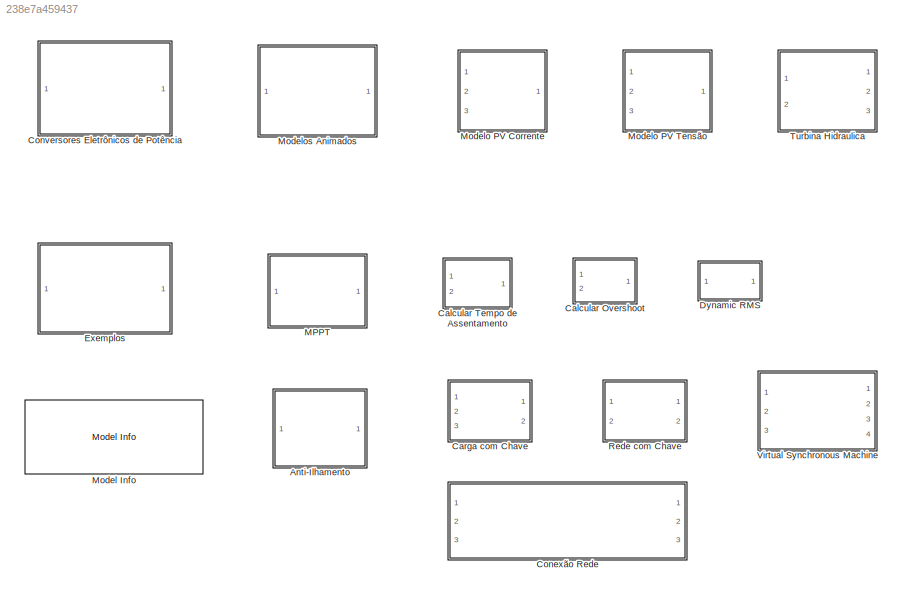
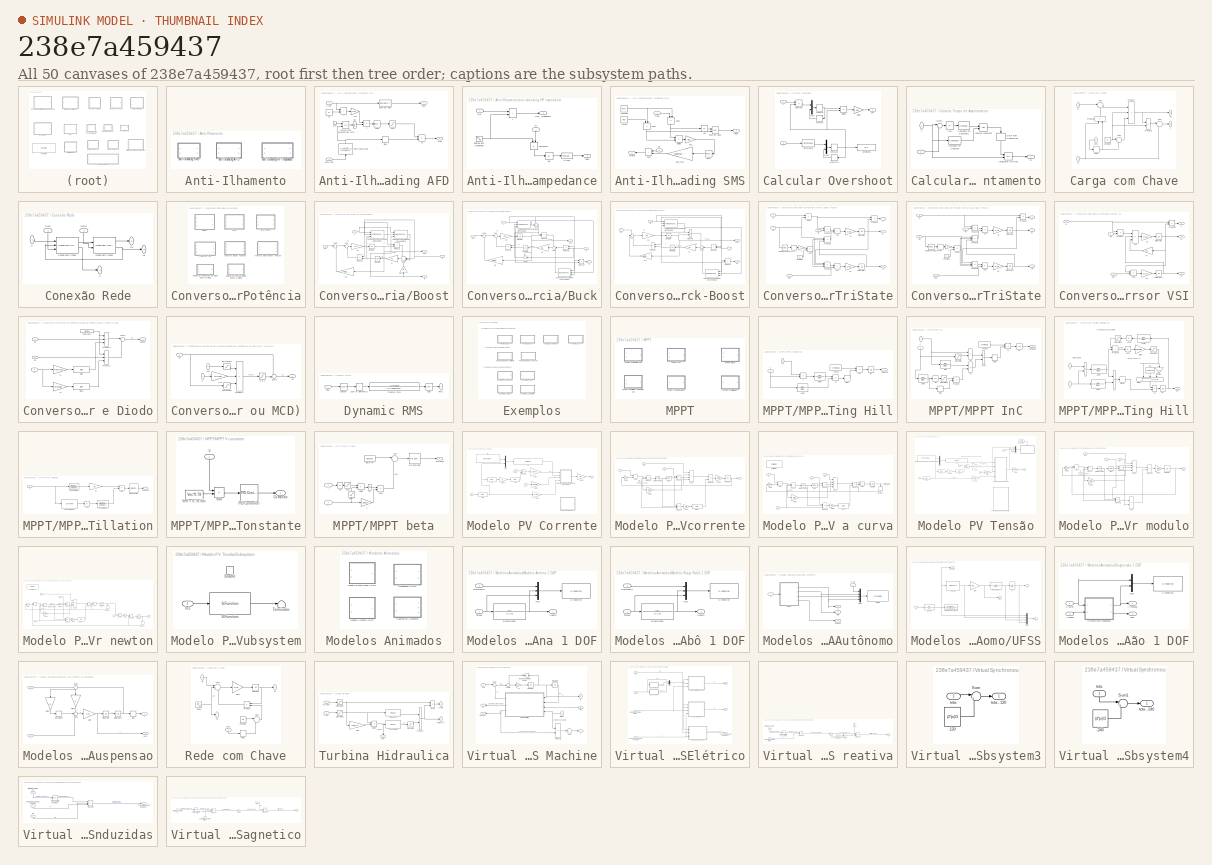
[diagram: thumbnail index - all 50 canvases of the model, root first then tree order]
MODEL slx_238e7a459437
KIND library
CONFIG AbsTol = auto
CONFIG EnableMultiTasking = on
CONFIG FixedStep = auto
CONFIG MaxStep = auto
CONFIG MinStep = auto
CONFIG RelTol = 1e-3
CONFIG SampleTimeConstraint = Unconstrained
CONFIG SolverName = ode45
CONFIG StartTime = 0.0
CONFIG StopTime = 10.0
BLOCK [SubSystem] Anti-Ilhamento
  Ports = []
  RequestExecContextInheritance = off
BLOCK [SubSystem] Anti-Ilhamento/anti-islanding AFD
  Ports = [2, 2]
  RequestExecContextInheritance = off
BLOCK [Sum] Anti-Ilhamento/anti-islanding AFD/+
  IconShape = rectangular
  Inputs = 2
  NameLocation = top
  Ports = [2, 1]
BLOCK [Gain] Anti-Ilhamento/anti-islanding AFD/2*pi
  Gain = 2*pi
  NameLocation = top
BLOCK [Reference] Anti-Ilhamento/anti-islanding AFD/Caso de falha  REF=simulink/Logic and Bit
Operations/Compare
To Constant
  Ports = [1, 1]
  SourceBlock = simulink/Logic and Bit\nOperations/Compare\nTo Constant
  SourceProductBaseCode = SL
  SourceType = Compare To Constant
BLOCK [Constant] Anti-Ilhamento/anti-islanding AFD/Df
  Value = Df
BLOCK [TransferFcn] Anti-Ilhamento/anti-islanding AFD/Filtro Passa-alta
  Denominator = [1/100 1]
  NameLocation = right
  Numerator = [1 0]
BLOCK [Saturate] Anti-Ilhamento/anti-islanding AFD/Sat
  LowerLimit = 0
  UpperLimit = 10e-3
BLOCK [Saturate] Anti-Ilhamento/anti-islanding AFD/Sat2
  LowerLimit = 0
  UpperLimit = 1000
BLOCK [Signum] Anti-Ilhamento/anti-islanding AFD/Sinal
BLOCK [Constant] Anti-Ilhamento/anti-islanding AFD/cte
BLOCK [Outport] Anti-Ilhamento/anti-islanding AFD/falha
  Port = 2
BLOCK [Inport] Anti-Ilhamento/anti-islanding AFD/freal
BLOCK [Outport] Anti-Ilhamento/anti-islanding AFD/mod
BLOCK [Integrator] Anti-Ilhamento/anti-islanding AFD/rampa com detecção por zero
  ExternalReset = either
  Ports = [2, 1]
BLOCK [Trigonometry] Anti-Ilhamento/anti-islanding AFD/seno
  NameLocation = top
  Ports = [1, 1]
BLOCK [Inport] Anti-Ilhamento/anti-islanding AFD/seno real
  Port = 2
BLOCK [Product] Anti-Ilhamento/anti-islanding AFD/x
  Ports = [2, 1]
  RndMeth = Zero
BLOCK [Product] Anti-Ilhamento/anti-islanding AFD/x2
  Ports = [2, 1]
  RndMeth = Zero
BLOCK [SubSystem] Anti-Ilhamento/anti-islanding HF impedance
  Ports = [2, 2]
  RequestExecContextInheritance = off
BLOCK [Sum] Anti-Ilhamento/anti-islanding HF impedance/+
  IconShape = rectangular
  Inputs = 2
  Ports = [2, 1]
BLOCK [Reference] Anti-Ilhamento/anti-islanding HF impedance/>= max  REF=simulink/Logic and Bit
Operations/Compare
To Constant
  Ports = [1, 1]
  SourceBlock = simulink/Logic and Bit\nOperations/Compare\nTo Constant
  SourceProductBaseCode = SL
  SourceType = Compare To Constant
BLOCK [Abs] Anti-Ilhamento/anti-islanding HF impedance/Abs
  SaturateOnIntegerOverflow = off
BLOCK [Inport] Anti-Ilhamento/anti-islanding HF impedance/Ref.
BLOCK [Outport] Anti-Ilhamento/anti-islanding HF impedance/Ref. modificada
BLOCK [Sin] Anti-Ilhamento/anti-islanding HF impedance/Sinal de alta frequencia
  Amplitude = vsinal
  Frequency = fsinal*2*pi
  Ports = [0, 1]
  SampleTime = 0
BLOCK [Inport] Anti-Ilhamento/anti-islanding HF impedance/Vo
  NameLocation = right
  Port = 2
BLOCK [Product] Anti-Ilhamento/anti-islanding HF impedance/comparar
  NameLocation = left
  Ports = [2, 1]
  RndMeth = Zero
BLOCK [Outport] Anti-Ilhamento/anti-islanding HF impedance/falha
  Port = 2
BLOCK [SubSystem] Anti-Ilhamento/anti-islanding SMS
  Ports = [2, 2]
  RequestExecContextInheritance = off
BLOCK [Abs] Anti-Ilhamento/anti-islanding SMS/Abs
  SaturateOnIntegerOverflow = off
BLOCK [Sum] Anti-Ilhamento/anti-islanding SMS/Add1
  IconShape = rectangular
  Inputs = 2
  Ports = [2, 1]
BLOCK [Sum] Anti-Ilhamento/anti-islanding SMS/Add2
  IconShape = rectangular
  Inputs = +-
  NameLocation = right
  Ports = [2, 1]
BLOCK [Sum] Anti-Ilhamento/anti-islanding SMS/Add3
  IconShape = rectangular
  Inputs = +-
  NameLocation = right
  Ports = [2, 1]
BLOCK [Product] Anti-Ilhamento/anti-islanding SMS/Divide
  Inputs = */
  Ports = [2, 1]
BLOCK [Gain] Anti-Ilhamento/anti-islanding SMS/ang_max
  Gain = angmax*pi/180
BLOCK [RelationalOperator] Anti-Ilhamento/anti-islanding SMS/caso de falha
  InputSameDT = off
  OutDataTypeStr = boolean
  Ports = [2, 1]
BLOCK [Outport] Anti-Ilhamento/anti-islanding SMS/falha
  Port = 2
BLOCK [Constant] Anti-Ilhamento/anti-islanding SMS/fmax
  Value = fmax
BLOCK [Constant] Anti-Ilhamento/anti-islanding SMS/fnominal
  Value = fnom
BLOCK [Inport] Anti-Ilhamento/anti-islanding SMS/freal
BLOCK [Gain] Anti-Ilhamento/anti-islanding SMS/pi//2
  Gain = pi/2
BLOCK [Trigonometry] Anti-Ilhamento/anti-islanding SMS/seno
  Ports = [1, 1]
BLOCK [Inport] Anti-Ilhamento/anti-islanding SMS/wt
  NameLocation = top
  Port = 2
BLOCK [Outport] Anti-Ilhamento/anti-islanding SMS/wt+ang
BLOCK [SubSystem] Calcular Overshoot
  Ports = [2, 1]
  RequestExecContextInheritance = off
BLOCK [Reference] Calcular Overshoot/Difference  REF=simulink/Discrete/Difference
  Ports = [1, 1]
  SourceBlock = simulink/Discrete/Difference
  SourceProductBaseCode = SL
  SourceType = Difference
BLOCK [Product] Calcular Overshoot/Divide
  Inputs = */
  Ports = [2, 1]
BLOCK [Gain] Calcular Overshoot/Gain1
  Gain = 100
BLOCK [Memory] Calcular Overshoot/Memory
BLOCK [Memory] Calcular Overshoot/Memory1
BLOCK [MinMax] Calcular Overshoot/MinMax
  Function = max
  Ports = [1, 1]
BLOCK [MinMax] Calcular Overshoot/MinMax2
  Function = max
  Ports = [1, 1]
BLOCK [Mux] Calcular Overshoot/Mux1
  DisplayOption = bar
  Inputs = 2
  Ports = [2, 1]
BLOCK [Mux] Calcular Overshoot/Mux2
  DisplayOption = bar
  Inputs = 2
  Ports = [2, 1]
BLOCK [Sum] Calcular Overshoot/Subtract
  IconShape = rectangular
  Inputs = +-
  Ports = [2, 1]
BLOCK [Outport] Calcular Overshoot/UP%
BLOCK [Display] Calcular Overshoot/amplitude
  Decimation = 1
  Ports = [1]
BLOCK [Inport] Calcular Overshoot/r
  Port = 2
BLOCK [Inport] Calcular Overshoot/y
BLOCK [SubSystem] Calcular Tempo de Assentamento
  Ports = [2, 1]
  RequestExecContextInheritance = off
BLOCK [Abs] Calcular Tempo de Assentamento/Abs
  SaturateOnIntegerOverflow = off
BLOCK [Reference] Calcular Tempo de Assentamento/Compare To Constant  REF=simulink/Logic and Bit
Operations/Compare
To Constant
  Ports = [1, 1]
  SourceBlock = simulink/Logic and Bit\nOperations/Compare\nTo Constant
  SourceProductBaseCode = SL
  SourceType = Compare To Constant
BLOCK [Reference] Calcular Tempo de Assentamento/Compare To Constant1  REF=simulink/Logic and Bit
Operations/Compare
To Constant
  Ports = [1, 1]
  SourceBlock = simulink/Logic and Bit\nOperations/Compare\nTo Constant
  SourceProductBaseCode = SL
  SourceType = Compare To Constant
BLOCK [DataTypeConversion] Calcular Tempo de Assentamento/Data Type Conversion
  NameLocation = right
  RndMeth = Floor
  SaturateOnIntegerOverflow = off
BLOCK [Integrator] Calcular Tempo de Assentamento/Integrator Limited
  ExternalReset = falling
  LimitOutput = on
  LowerSaturationLimit = 0
  Ports = [2, 1]
BLOCK [Logic] Calcular Tempo de Assentamento/Logical Operator
  AllPortsSameDT = off
  Ports = [2, 1]
BLOCK [Sum] Calcular Tempo de Assentamento/Sum1
  Inputs = |+-
  Ports = [2, 1]
BLOCK [Outport] Calcular Tempo de Assentamento/Ts
BLOCK [Inport] Calcular Tempo de Assentamento/r
  Port = 2
BLOCK [Inport] Calcular Tempo de Assentamento/y
  NameLocation = top
BLOCK [SubSystem] Carga com Chave
  Ports = [3, 2]
  RequestExecContextInheritance = off
BLOCK [Sum] Carga com Chave/Add1
  Inputs = |+-
  Ports = [2, 1]
BLOCK [Sum] Carga com Chave/Add2
  Inputs = |++
  Ports = [2, 1]
BLOCK [Sum] Carga com Chave/Add3
  Inputs = |++
  Ports = [2, 1]
BLOCK [Constant] Carga com Chave/Constant
  Value = Rl
BLOCK [Outport] Carga com Chave/Ii
  NameLocation = top
  Port = 2
BLOCK [Inport] Carga com Chave/Io
  NameLocation = top
  Port = 2
BLOCK [Product] Carga com Chave/Product
  Inputs = **/
  NameLocation = top
  Ports = [3, 1]
BLOCK [Product] Carga com Chave/Product1
  NameLocation = left
  Ports = [2, 1]
BLOCK [Product] Carga com Chave/Product2
  Inputs = */
  NameLocation = top
  Ports = [2, 1]
BLOCK [Relay] Carga com Chave/Relay
  OffOutputValue = Rsmax
  OffSwitchValue = 0.4
  OnOutputValue = Rsmin
  OnSwitchValue = 0.6
BLOCK [Inport] Carga com Chave/Scon
  Port = 3
BLOCK [Inport] Carga com Chave/Vi
  NameLocation = top
BLOCK [Outport] Carga com Chave/Vo
  NameLocation = top
BLOCK [SubSystem] Conexão Rede
  Ports = [3, 3]
  RequestExecContextInheritance = off
BLOCK [Reference] Conexão Rede/Carga com Chave  REF=$bdroot/Carga com Chave
  Ports = [3, 2]
  SourceBlock = $bdroot/Carga com Chave
  SourceType = Modelo Médio de Conexao com a Rede
BLOCK [Outport] Conexão Rede/Ig
  NameLocation = top
  Port = 2
BLOCK [Outport] Conexão Rede/Ii
  NameLocation = top
  Port = 3
BLOCK [Reference] Conexão Rede/Rede com Chave  REF=$bdroot/Rede com Chave
  Ports = [2, 2]
  SourceBlock = $bdroot/Rede com Chave
  SourceType = Modelo Médio de Conexao com a Rede
BLOCK [Inport] Conexão Rede/Scon
  NameLocation = right
  Port = 2
BLOCK [Inport] Conexão Rede/Sgrid
  NameLocation = right
  Port = 3
BLOCK [Outport] Conexão Rede/Vg
  NameLocation = top
BLOCK [Inport] Conexão Rede/Vi
  NameLocation = top
BLOCK [SubSystem] Conversores Eletrônicos de Potência
  Ports = []
  RequestExecContextInheritance = off
BLOCK [SubSystem] Conversores Eletrônicos de Potência/Boost
  Ports = [3, 2]
  RequestExecContextInheritance = off
BLOCK [Gain] Conversores Eletrônicos de Potência/Boost/1//C
  Gain = 1/C
BLOCK [Gain] Conversores Eletrônicos de Potência/Boost/1//L
  Gain = 1/L
BLOCK [Gain] Conversores Eletrônicos de Potência/Boost/1//R
  Gain = 1/Edit_carga
BLOCK [Inport] Conversores Eletrônicos de Potência/Boost/E
BLOCK [Outport] Conversores Eletrônicos de Potência/Boost/I in
BLOCK [Inport] Conversores Eletrônicos de Potência/Boost/I out
  Port = 2
BLOCK [Integrator] Conversores Eletrônicos de Potência/Boost/Integrator
  InitialCondition = Vini
  LimitOutput = on
  LowerSaturationLimit = 0
  Ports = [1, 1]
BLOCK [Integrator] Conversores Eletrônicos de Potência/Boost/Integrator1
  InitialCondition = Iini
  LimitOutput = on
  LowerSaturationLimit = 0
  Ports = [1, 1]
BLOCK [Product] Conversores Eletrônicos de Potência/Boost/Product1
  Ports = [2, 1]
  RndMeth = Zero
BLOCK [Product] Conversores Eletrônicos de Potência/Boost/Product2
  Ports = [2, 1]
  RndMeth = Zero
BLOCK [Reference] Conversores Eletrônicos de Potência/Boost/Queda de Tensão Média Chave e Diodo  REF=$bdroot/Conversores
Eletrônicos de Potência/Queda de Tensão Média
Chave e Diodo
  Ports = [3, 1]
  SourceBlock = $bdroot/Conversores\nEletrônicos de Potência/Queda de Tensão Média\nChave e Diodo
  SourceType = Calcular Quedas em Chave e Diodo
BLOCK [Gain] Conversores Eletrônicos de Potência/Boost/RL
  Gain = RL
  NameLocation = left
BLOCK [Sum] Conversores Eletrônicos de Potência/Boost/Sum
  Inputs = |-+
  Ports = [2, 1]
BLOCK [Sum] Conversores Eletrônicos de Potência/Boost/Sum1
  Inputs = -+--
  Ports = [4, 1]
BLOCK [Sum] Conversores Eletrônicos de Potência/Boost/Sum2
  Inputs = |++
  Ports = [2, 1]
BLOCK [Reference] Conversores Eletrônicos de Potência/Boost/Tempo de Condução do Diodo (MCC ou MCD)  REF=$bdroot/Conversores
Eletrônicos de Potência/Tempo de Condução 
do Diodo
(MCC ou MCD)
  Ports = [3, 1]
  SourceBlock = $bdroot/Conversores\nEletrônicos de Potência/Tempo de Condução \ndo Diodo\n(MCC ou MCD)
  SourceType = Tempo MCC ou MCD
BLOCK [Outport] Conversores Eletrônicos de Potência/Boost/V out
  Port = 2
BLOCK [Inport] Conversores Eletrônicos de Potência/Boost/d
  Port = 3
BLOCK [SubSystem] Conversores Eletrônicos de Potência/Buck
  Ports = [3, 2]
  RequestExecContextInheritance = off
BLOCK [SubSystem] Conversores Eletrônicos de Potência/Buck-Boost
  Ports = [3, 2]
  RequestExecContextInheritance = off
BLOCK [Gain] Conversores Eletrônicos de Potência/Buck-Boost/1//L
  Gain = 1/L
BLOCK [Gain] Conversores Eletrônicos de Potência/Buck-Boost/1//L1
  Gain = 1/C
BLOCK [Gain] Conversores Eletrônicos de Potência/Buck-Boost/1//L2
  Gain = 1/Edit_carga
BLOCK [Inport] Conversores Eletrônicos de Potência/Buck-Boost/E
BLOCK [Outport] Conversores Eletrônicos de Potência/Buck-Boost/I in
BLOCK [Inport] Conversores Eletrônicos de Potência/Buck-Boost/I out
  Port = 2
BLOCK [Integrator] Conversores Eletrônicos de Potência/Buck-Boost/Integrator
  InitialCondition = Vini
  LimitOutput = on
  LowerSaturationLimit = 0
  Ports = [1, 1]
BLOCK [Integrator] Conversores Eletrônicos de Potência/Buck-Boost/Integrator1
  InitialCondition = Iini
  LimitOutput = on
  LowerSaturationLimit = 0
  Ports = [1, 1]
BLOCK [Product] Conversores Eletrônicos de Potência/Buck-Boost/Product1
  Ports = [2, 1]
  RndMeth = Zero
BLOCK [Product] Conversores Eletrônicos de Potência/Buck-Boost/Product2
  Ports = [2, 1]
  RndMeth = Zero
BLOCK [Product] Conversores Eletrônicos de Potência/Buck-Boost/Product3
  Ports = [2, 1]
  RndMeth = Zero
BLOCK [Product] Conversores Eletrônicos de Potência/Buck-Boost/Product4
  Ports = [2, 1]
  RndMeth = Zero
BLOCK [Reference] Conversores Eletrônicos de Potência/Buck-Boost/Queda de Tensão Média Chave e Diodo  REF=$bdroot/Conversores
Eletrônicos de Potência/Queda de Tensão Média
Chave e Diodo
  Ports = [3, 1]
  SourceBlock = $bdroot/Conversores\nEletrônicos de Potência/Queda de Tensão Média\nChave e Diodo
  SourceType = Calcular Quedas em Chave e Diodo
BLOCK [Sum] Conversores Eletrônicos de Potência/Buck-Boost/Sum
  Inputs = --+
  Ports = [3, 1]
BLOCK [Sum] Conversores Eletrônicos de Potência/Buck-Boost/Sum1
  Inputs = -+-
  Ports = [3, 1]
BLOCK [Reference] Conversores Eletrônicos de Potência/Buck-Boost/Tempo de Condução do Diodo (MCC ou MCD)  REF=$bdroot/Conversores
Eletrônicos de Potência/Tempo de Condução 
do Diodo
(MCC ou MCD)
  Ports = [3, 1]
  SourceBlock = $bdroot/Conversores\nEletrônicos de Potência/Tempo de Condução \ndo Diodo\n(MCC ou MCD)
  SourceType = Tempo MCC ou MCD
BLOCK [Outport] Conversores Eletrônicos de Potência/Buck-Boost/V out
  Port = 2
BLOCK [Inport] Conversores Eletrônicos de Potência/Buck-Boost/d
  Port = 3
BLOCK [Gain] Conversores Eletrônicos de Potência/Buck/-1//C
  Gain = -1/C
BLOCK [Gain] Conversores Eletrônicos de Potência/Buck/1//L
  Gain = 1/L
BLOCK [Gain] Conversores Eletrônicos de Potência/Buck/1//R
  Gain = 1/Edit_carga
BLOCK [Inport] Conversores Eletrônicos de Potência/Buck/E
BLOCK [Outport] Conversores Eletrônicos de Potência/Buck/I in
BLOCK [Inport] Conversores Eletrônicos de Potência/Buck/I out
  Port = 2
BLOCK [Integrator] Conversores Eletrônicos de Potência/Buck/Integrator
  InitialCondition = Vini
  LimitOutput = on
  LowerSaturationLimit = 0
  Ports = [1, 1]
BLOCK [Integrator] Conversores Eletrônicos de Potência/Buck/Integrator1
  InitialCondition = Iini
  LimitOutput = on
  LowerSaturationLimit = 0
  Ports = [1, 1]
BLOCK [Product] Conversores Eletrônicos de Potência/Buck/Product1
  Ports = [2, 1]
  RndMeth = Zero
BLOCK [Product] Conversores Eletrônicos de Potência/Buck/Product2
  Ports = [2, 1]
  RndMeth = Zero
BLOCK [Product] Conversores Eletrônicos de Potência/Buck/Product3
  Ports = [2, 1]
  RndMeth = Zero
BLOCK [Product] Conversores Eletrônicos de Potência/Buck/Product4
  Ports = [2, 1]
  RndMeth = Zero
BLOCK [Reference] Conversores Eletrônicos de Potência/Buck/Queda de Tensão Média Chave e Diodo  REF=$bdroot/Conversores
Eletrônicos de Potência/Queda de Tensão Média
Chave e Diodo
  Ports = [3, 1]
  SourceBlock = $bdroot/Conversores\nEletrônicos de Potência/Queda de Tensão Média\nChave e Diodo
  SourceType = Calcular Quedas em Chave e Diodo
BLOCK [Sum] Conversores Eletrônicos de Potência/Buck/Sum
  Inputs = |+-
  Ports = [2, 1]
BLOCK [Sum] Conversores Eletrônicos de Potência/Buck/Sum1
  Inputs = -+-
  Ports = [3, 1]
BLOCK [Sum] Conversores Eletrônicos de Potência/Buck/Sum2
  Inputs = ++|
  Ports = [2, 1]
BLOCK [Sum] Conversores Eletrônicos de Potência/Buck/Sum3
  Inputs = -+|
  Ports = [2, 1]
BLOCK [Sum] Conversores Eletrônicos de Potência/Buck/Sum4
  Inputs = |++
  Ports = [2, 1]
BLOCK [Reference] Conversores Eletrônicos de Potência/Buck/Tempo de Condução do Diodo (MCC ou MCD)  REF=$bdroot/Conversores
Eletrônicos de Potência/Tempo de Condução 
do Diodo
(MCC ou MCD)
  Ports = [3, 1]
  SourceBlock = $bdroot/Conversores\nEletrônicos de Potência/Tempo de Condução \ndo Diodo\n(MCC ou MCD)
  SourceType = Tempo MCC ou MCD
BLOCK [Outport] Conversores Eletrônicos de Potência/Buck/V out
  Port = 2
BLOCK [Inport] Conversores Eletrônicos de Potência/Buck/d
  Port = 3
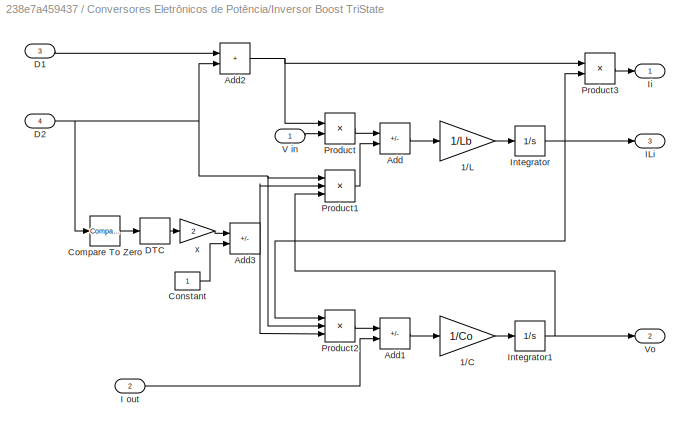
BLOCK [SubSystem] Conversores Eletrônicos de Potência/Inversor Boost TriState
  Ports = [4, 3]
  RequestExecContextInheritance = off
BLOCK [Gain] Conversores Eletrônicos de Potência/Inversor Boost TriState/1//C
  Gain = 1/Co
BLOCK [Gain] Conversores Eletrônicos de Potência/Inversor Boost TriState/1//L
  Gain = 1/Lb
BLOCK [Sum] Conversores Eletrônicos de Potência/Inversor Boost TriState/Add
  IconShape = rectangular
  Inputs = +-
  Ports = [2, 1]
BLOCK [Sum] Conversores Eletrônicos de Potência/Inversor Boost TriState/Add1
  IconShape = rectangular
  Inputs = +-
  Ports = [2, 1]
BLOCK [Sum] Conversores Eletrônicos de Potência/Inversor Boost TriState/Add2
  IconShape = rectangular
  Inputs = 2
  Ports = [2, 1]
BLOCK [Sum] Conversores Eletrônicos de Potência/Inversor Boost TriState/Add3
  IconShape = rectangular
  Inputs = +-
  Ports = [2, 1]
BLOCK [Reference] Conversores Eletrônicos de Potência/Inversor Boost TriState/Compare To Zero  REF=simulink/Logic and Bit
Operations/Compare
To Zero
  Ports = [1, 1]
  SourceBlock = simulink/Logic and Bit\nOperations/Compare\nTo Zero
  SourceProductBaseCode = SL
  SourceType = Compare To Zero
BLOCK [Constant] Conversores Eletrônicos de Potência/Inversor Boost TriState/Constant
BLOCK [Inport] Conversores Eletrônicos de Potência/Inversor Boost TriState/D1
  Port = 3
BLOCK [Inport] Conversores Eletrônicos de Potência/Inversor Boost TriState/D2
  Port = 4
BLOCK [DataTypeConversion] Conversores Eletrônicos de Potência/Inversor Boost TriState/DTC
  OutDataTypeStr = double
  RndMeth = Floor
  SaturateOnIntegerOverflow = off
BLOCK [Inport] Conversores Eletrônicos de Potência/Inversor Boost TriState/I out
  Port = 2
BLOCK [Outport] Conversores Eletrônicos de Potência/Inversor Boost TriState/ILi
  Port = 3
BLOCK [Outport] Conversores Eletrônicos de Potência/Inversor Boost TriState/Ii
BLOCK [Integrator] Conversores Eletrônicos de Potência/Inversor Boost TriState/Integrator
  InitialCondition = ILb
  LimitOutput = on
  LowerSaturationLimit = 0
  Ports = [1, 1]
BLOCK [Integrator] Conversores Eletrônicos de Potência/Inversor Boost TriState/Integrator1
  InitialCondition = Vco
  LowerSaturationLimit = 0
  Ports = [1, 1]
BLOCK [Product] Conversores Eletrônicos de Potência/Inversor Boost TriState/Product
  Ports = [2, 1]
  RndMeth = Zero
BLOCK [Product] Conversores Eletrônicos de Potência/Inversor Boost TriState/Product1
  Inputs = 3
  Ports = [3, 1]
  RndMeth = Zero
BLOCK [Product] Conversores Eletrônicos de Potência/Inversor Boost TriState/Product2
  Inputs = 3
  Ports = [3, 1]
  RndMeth = Zero
BLOCK [Product] Conversores Eletrônicos de Potência/Inversor Boost TriState/Product3
  Ports = [2, 1]
  RndMeth = Zero
BLOCK [Inport] Conversores Eletrônicos de Potência/Inversor Boost TriState/V in
BLOCK [Outport] Conversores Eletrônicos de Potência/Inversor Boost TriState/Vo
  Port = 2
BLOCK [Gain] Conversores Eletrônicos de Potência/Inversor Boost TriState/x
  Gain = 2
  OutDataTypeStr = double
  RndMeth = Round
BLOCK [SubSystem] Conversores Eletrônicos de Potência/Inversor Buck-Boost TriState
  Ports = [4, 3]
  RequestExecContextInheritance = off
BLOCK [Gain] Conversores Eletrônicos de Potência/Inversor Buck-Boost TriState/1//C
  Gain = 1/Co
BLOCK [Gain] Conversores Eletrônicos de Potência/Inversor Buck-Boost TriState/1//L
  Gain = 1/Lb
BLOCK [Sum] Conversores Eletrônicos de Potência/Inversor Buck-Boost TriState/Add
  IconShape = rectangular
  Inputs = +-
  Ports = [2, 1]
BLOCK [Sum] Conversores Eletrônicos de Potência/Inversor Buck-Boost TriState/Add1
  IconShape = rectangular
  Inputs = +-
  Ports = [2, 1]
BLOCK [Sum] Conversores Eletrônicos de Potência/Inversor Buck-Boost TriState/Add3
  IconShape = rectangular
  Inputs = +-
  Ports = [2, 1]
BLOCK [Reference] Conversores Eletrônicos de Potência/Inversor Buck-Boost TriState/Compare To Zero  REF=simulink/Logic and Bit
Operations/Compare
To Zero
  Ports = [1, 1]
  SourceBlock = simulink/Logic and Bit\nOperations/Compare\nTo Zero
  SourceProductBaseCode = SL
  SourceType = Compare To Zero
BLOCK [Constant] Conversores Eletrônicos de Potência/Inversor Buck-Boost TriState/Constant
BLOCK [Inport] Conversores Eletrônicos de Potência/Inversor Buck-Boost TriState/D1
  Port = 3
BLOCK [Inport] Conversores Eletrônicos de Potência/Inversor Buck-Boost TriState/D2
  Port = 4
BLOCK [DataTypeConversion] Conversores Eletrônicos de Potência/Inversor Buck-Boost TriState/DTC
  OutDataTypeStr = double
  RndMeth = Floor
  SaturateOnIntegerOverflow = off
BLOCK [Inport] Conversores Eletrônicos de Potência/Inversor Buck-Boost TriState/I out
  Port = 2
BLOCK [Outport] Conversores Eletrônicos de Potência/Inversor Buck-Boost TriState/ILi
  Port = 3
BLOCK [Outport] Conversores Eletrônicos de Potência/Inversor Buck-Boost TriState/Ii
BLOCK [Integrator] Conversores Eletrônicos de Potência/Inversor Buck-Boost TriState/Integrator
  InitialCondition = ILb
  LimitOutput = on
  LowerSaturationLimit = 0
  Ports = [1, 1]
BLOCK [Integrator] Conversores Eletrônicos de Potência/Inversor Buck-Boost TriState/Integrator1
  InitialCondition = Vco
  LowerSaturationLimit = 0
  Ports = [1, 1]
BLOCK [Product] Conversores Eletrônicos de Potência/Inversor Buck-Boost TriState/Product
  Ports = [2, 1]
  RndMeth = Zero
BLOCK [Product] Conversores Eletrônicos de Potência/Inversor Buck-Boost TriState/Product1
  Inputs = 3
  Ports = [3, 1]
  RndMeth = Zero
BLOCK [Product] Conversores Eletrônicos de Potência/Inversor Buck-Boost TriState/Product2
  Inputs = 3
  Ports = [3, 1]
  RndMeth = Zero
BLOCK [Product] Conversores Eletrônicos de Potência/Inversor Buck-Boost TriState/Product3
  Ports = [2, 1]
  RndMeth = Zero
BLOCK [Inport] Conversores Eletrônicos de Potência/Inversor Buck-Boost TriState/V in
BLOCK [Outport] Conversores Eletrônicos de Potência/Inversor Buck-Boost TriState/Vo
  Port = 2
BLOCK [Gain] Conversores Eletrônicos de Potência/Inversor Buck-Boost TriState/x
  Gain = 2
  OutDataTypeStr = double
  RndMeth = Round
BLOCK [SubSystem] Conversores Eletrônicos de Potência/Inversor VSI
  Ports = [3, 3]
  RequestExecContextInheritance = off
BLOCK [Gain] Conversores Eletrônicos de Potência/Inversor VSI/1//C
  Gain = 1/Co
BLOCK [Gain] Conversores Eletrônicos de Potência/Inversor VSI/1//L
  Gain = 1/Lb
BLOCK [Sum] Conversores Eletrônicos de Potência/Inversor VSI/Add
  IconShape = rectangular
  Inputs = +--
  Ports = [3, 1]
BLOCK [Sum] Conversores Eletrônicos de Potência/Inversor VSI/Add1
  IconShape = rectangular
  Inputs = +-
  Ports = [2, 1]
BLOCK [Inport] Conversores Eletrônicos de Potência/Inversor VSI/I out
  Port = 2
BLOCK [Outport] Conversores Eletrônicos de Potência/Inversor VSI/ILi
  Port = 3
BLOCK [Outport] Conversores Eletrônicos de Potência/Inversor VSI/Ii
BLOCK [Integrator] Conversores Eletrônicos de Potência/Inversor VSI/Integrator
  InitialCondition = ILb
  LowerSaturationLimit = 0
  Ports = [1, 1]
BLOCK [Integrator] Conversores Eletrônicos de Potência/Inversor VSI/Integrator1
  InitialCondition = Vco
  LowerSaturationLimit = 0
  Ports = [1, 1]
BLOCK [Product] Conversores Eletrônicos de Potência/Inversor VSI/Product
  Ports = [2, 1]
  RndMeth = Zero
BLOCK [Product] Conversores Eletrônicos de Potência/Inversor VSI/Product3
  Ports = [2, 1]
  RndMeth = Zero
BLOCK [Gain] Conversores Eletrônicos de Potência/Inversor VSI/Rl
  Gain = Rl
BLOCK [Inport] Conversores Eletrônicos de Potência/Inversor VSI/V in
BLOCK [Outport] Conversores Eletrônicos de Potência/Inversor VSI/Vo
  Port = 2
BLOCK [Inport] Conversores Eletrônicos de Potência/Inversor VSI/m
  Port = 3
BLOCK [SubSystem] Conversores Eletrônicos de Potência/Queda de Tensão Média Chave e Diodo
  Ports = [3, 1]
  RequestExecContextInheritance = off
BLOCK [Bias] Conversores Eletrônicos de Potência/Queda de Tensão Média Chave e Diodo/Bias
  Bias = Uswitch
  SaturateOnIntegerOverflow = off
BLOCK [Bias] Conversores Eletrônicos de Potência/Queda de Tensão Média Chave e Diodo/Bias1
  Bias = Udiode
  SaturateOnIntegerOverflow = off
BLOCK [Constant] Conversores Eletrônicos de Potência/Queda de Tensão Média Chave e Diodo/Constant1
  Value = direction
BLOCK [Inport] Conversores Eletrônicos de Potência/Queda de Tensão Média Chave e Diodo/D1
BLOCK [Inport] Conversores Eletrônicos de Potência/Queda de Tensão Média Chave e Diodo/D2
  Port = 2
BLOCK [Inport] Conversores Eletrônicos de Potência/Queda de Tensão Média Chave e Diodo/IL
  NameLocation = top
  Port = 3
BLOCK [Product] Conversores Eletrônicos de Potência/Queda de Tensão Média Chave e Diodo/Product1
  Inputs = 3
  Ports = [3, 1]
  RndMeth = Zero
BLOCK [Product] Conversores Eletrônicos de Potência/Queda de Tensão Média Chave e Diodo/Product3
  Inputs = 3
  Ports = [3, 1]
  RndMeth = Zero
BLOCK [Outport] Conversores Eletrônicos de Potência/Queda de Tensão Média Chave e Diodo/Queda
BLOCK [Sum] Conversores Eletrônicos de Potência/Queda de Tensão Média Chave e Diodo/Sum3
  Inputs = |++
  Ports = [2, 1]
BLOCK [Gain] Conversores Eletrônicos de Potência/Queda de Tensão Média Chave e Diodo/rd
  Gain = Rdiode
  NameLocation = top
BLOCK [Gain] Conversores Eletrônicos de Potência/Queda de Tensão Média Chave e Diodo/rs
  Gain = Rswitch
  NameLocation = top
BLOCK [SubSystem] Conversores Eletrônicos de Potência/Tempo de Condução do Diodo (MCC ou MCD)
  Ports = [3, 1]
  RequestExecContextInheritance = off
BLOCK [Saturate] Conversores Eletrônicos de Potência/Tempo de Condução do Diodo (MCC ou MCD)/0 a 1
  LowerLimit = 0
  UpperLimit = 1
BLOCK [Inport] Conversores Eletrônicos de Potência/Tempo de Condução do Diodo (MCC ou MCD)/D1
BLOCK [Outport] Conversores Eletrônicos de Potência/Tempo de Condução do Diodo (MCC ou MCD)/D2
BLOCK [Inport] Conversores Eletrônicos de Potência/Tempo de Condução do Diodo (MCC ou MCD)/IL
  Port = 3
BLOCK [Gain] Conversores Eletrônicos de Potência/Tempo de Condução do Diodo (MCC ou MCD)/L//Ts
  Gain = 2*(L*Fs)
BLOCK [Product] Conversores Eletrônicos de Potência/Tempo de Condução do Diodo (MCC ou MCD)/Product4
  Inputs = /*/
  NameLocation = top
  Ports = [3, 1]
  RndMeth = Zero
BLOCK [Saturate] Conversores Eletrônicos de Potência/Tempo de Condução do Diodo (MCC ou MCD)/Saturation
  LowerLimit = eps
  UpperLimit = 1
BLOCK [Saturate] Conversores Eletrônicos de Potência/Tempo de Condução do Diodo (MCC ou MCD)/Saturation1
  LowerLimit = eps
  UpperLimit = inf
BLOCK [Sum] Conversores Eletrônicos de Potência/Tempo de Condução do Diodo (MCC ou MCD)/Sum3
  Inputs = -+|
  Ports = [2, 1]
BLOCK [Inport] Conversores Eletrônicos de Potência/Tempo de Condução do Diodo (MCC ou MCD)/Uup
  NameLocation = top
  Port = 2
BLOCK [SubSystem] Dynamic RMS
  Ports = [1, 1]
  RequestExecContextInheritance = off
BLOCK [Outport] Dynamic RMS/RMS
BLOCK [Sqrt] Dynamic RMS/Sqrt
BLOCK [Math] Dynamic RMS/Square
  Operator = square
  Ports = [1, 1]
BLOCK [Sum] Dynamic RMS/Sum of Elements1
  IconShape = rectangular
  Inputs = +
  Ports = [1, 1]
BLOCK [TransferFcn] Dynamic RMS/Transfer Fcn1
  Denominator = [1/(fbase*nfases) 1]
  Numerator = [1/nfases]
BLOCK [Inport] Dynamic RMS/sinal
BLOCK [SubSystem] Exemplos
  Ports = []
  RequestExecContextInheritance = off
BLOCK [ModelReference] Exemplos/Exemplo_Antena
  Description = Modelo de Teste do Buck-Boost.
  OpenFcn = Exemplo_Antena
  Ports = []
BLOCK [ModelReference] Exemplos/Exemplo_Robo
  Description = Modelo de Teste do Buck-Boost.
  OpenFcn = Exemplo_Robo1dof
  Ports = []
BLOCK [ModelReference] Exemplos/Exemplo_Submarino
  Description = Modelo de Teste do Buck-Boost.
  OpenFcn = Exemplo_Submarino
  Ports = []
BLOCK [ModelReference] Exemplos/Exemplo_Suspensao
  Description = Modelo de Teste do Buck-Boost.
  OpenFcn = Exemplo_Suspensao
  Ports = []
BLOCK [ModelReference] Exemplos/Teste_Boost
  Description = Modelo de Teste do Boost
  OpenFcn = Teste_Boost
  Ports = []
BLOCK [ModelReference] Exemplos/Teste_Buck
  Description = Modelo de Teste do Buck.
  OpenFcn = Teste_Buck
  Ports = []
BLOCK [ModelReference] Exemplos/Teste_Buck-Boost
  Description = Modelo de Teste do Buck-Boost.
  OpenFcn = Teste_BuckBoost
  Ports = []
BLOCK [ModelReference] Exemplos/Teste_ModeloPV_Corrente
  Description = Teste do modelo PV de corrente.
  OpenFcn = Teste_ModeloPV_2015a
  Ports = []
BLOCK [ModelReference] Exemplos/Teste_ModeloPV_Tensão
  Description = Teste do modelo PV de tensão.
  OpenFcn = Teste_ModeloPVTensao_2015a
  Ports = []
BLOCK [ModelReference] Exemplos/Teste_VSI
  Description = Modelo de Teste do Buck-Boost.
  OpenFcn = Teste_VSI
  Ports = []
BLOCK [SubSystem] MPPT
  Ports = []
  RequestExecContextInheritance = off
BLOCK [SubSystem] MPPT/MPPT Climbing Hill
  Ports = [2, 1]
  RequestExecContextInheritance = off
BLOCK [Constant] MPPT/MPPT Climbing Hill/-Passo
  Value = -1*Passo
BLOCK [Outport] MPPT/MPPT Climbing Hill/Comando
BLOCK [Inport] MPPT/MPPT Climbing Hill/I
  NameLocation = top
  Port = 2
BLOCK [Integrator] MPPT/MPPT Climbing Hill/Int
  InitialCondition = Inicial
  LimitOutput = on
  LowerSaturationLimit = liminf
  Ports = [1, 1]
  UpperSaturationLimit = limsup
BLOCK [Signum] MPPT/MPPT Climbing Hill/Sinal
  ZeroCross = off
BLOCK [Inport] MPPT/MPPT Climbing Hill/V
  NameLocation = right
BLOCK [TransferFcn] MPPT/MPPT Climbing Hill/dP//dt
  Denominator = [1/fb 1]
  Numerator = [1 0]
BLOCK [TransferFcn] MPPT/MPPT Climbing Hill/dV//dt
  Denominator = [1/fb 1]
  Numerator = [1 0]
BLOCK [Product] MPPT/MPPT Climbing Hill/x
  Ports = [2, 1]
  RndMeth = Zero
BLOCK [Product] MPPT/MPPT Climbing Hill/x2
  Ports = [2, 1]
  RndMeth = Zero
BLOCK [Product] MPPT/MPPT Climbing Hill/x3
  Ports = [2, 1]
  RndMeth = Zero
BLOCK [SubSystem] MPPT/MPPT InC
  Ports = [2, 1]
  RequestExecContextInheritance = off
BLOCK [Constant] MPPT/MPPT InC/-Passo
  Value = -1*Passo
BLOCK [Abs] MPPT/MPPT InC/Abs
  SaturateOnIntegerOverflow = off
BLOCK [Outport] MPPT/MPPT InC/Comando
BLOCK [Inport] MPPT/MPPT InC/I
  NameLocation = top
  Port = 2
BLOCK [Integrator] MPPT/MPPT InC/Int
  LimitOutput = on
  LowerSaturationLimit = liminf
  Ports = [1, 1]
  UpperSaturationLimit = limsup
BLOCK [Product] MPPT/MPPT InC/Product
  Ports = [2, 1]
BLOCK [Saturate] MPPT/MPPT InC/Saturation
  LowerLimit = 0.01
  UpperLimit = 1e3
BLOCK [Saturate] MPPT/MPPT InC/Saturation1
  LowerLimit = 1e-5
  UpperLimit = 1e3
BLOCK [Signum] MPPT/MPPT InC/Sign
BLOCK [Signum] MPPT/MPPT InC/Sinal
BLOCK [Sum] MPPT/MPPT InC/Soma
  IconShape = rectangular
  Inputs = 2
  Ports = [2, 1]
BLOCK [Inport] MPPT/MPPT InC/V
  NameLocation = right
BLOCK [TransferFcn] MPPT/MPPT InC/dI//dt
  Denominator = [1/fb 1]
  Numerator = [1 0]
BLOCK [TransferFcn] MPPT/MPPT InC/dV//dt
  Denominator = [1/fb 1]
  Numerator = [1 0]
BLOCK [Product] MPPT/MPPT InC/x1
  Inputs = */
  Ports = [2, 1]
  RndMeth = Zero
BLOCK [Product] MPPT/MPPT InC/x3
  Ports = [2, 1]
  RndMeth = Zero
BLOCK [Product] MPPT/MPPT InC/x4
  Inputs = */
  Ports = [2, 1]
  RndMeth = Zero
BLOCK [SubSystem] MPPT/MPPT Modified Climbing Hill
  Ports = [2, 1]
  RequestExecContextInheritance = off
BLOCK [Abs] MPPT/MPPT Modified Climbing Hill/Abs1
  SaturateOnIntegerOverflow = off
BLOCK [Abs] MPPT/MPPT Modified Climbing Hill/Abs2
  SaturateOnIntegerOverflow = off
BLOCK [Gain] MPPT/MPPT Modified Climbing Hill/Gain1
  Gain = Escala
BLOCK [Gain] MPPT/MPPT Modified Climbing Hill/Gain2
  Gain = -1
  NameLocation = left
BLOCK [Inport] MPPT/MPPT Modified Climbing Hill/I
  NameLocation = top
  Port = 2
BLOCK [Integrator] MPPT/MPPT Modified Climbing Hill/Int
  InitialCondition = Inicial
  LimitOutput = on
  LowerSaturationLimit = liminf
  Ports = [1, 1]
  UpperSaturationLimit = limsup
BLOCK [Constant] MPPT/MPPT Modified Climbing Hill/Op
  NameLocation = left
  Value = Inverso
BLOCK [Outport] MPPT/MPPT Modified Climbing Hill/Out
BLOCK [Product] MPPT/MPPT Modified Climbing Hill/Product4
  Inputs = /*
  Ports = [2, 1]
  RndMeth = Zero
BLOCK [Saturate] MPPT/MPPT Modified Climbing Hill/Saturation1
  LowerLimit = Passomin
  UpperLimit = Passomax
BLOCK [Saturate] MPPT/MPPT Modified Climbing Hill/Saturation2
  LowerLimit = 0.1
  UpperLimit = 10000
BLOCK [Signum] MPPT/MPPT Modified Climbing Hill/Signal
BLOCK [Switch] MPPT/MPPT Modified Climbing Hill/Switch
  Criteria = u2 > Threshold
  InputSameDT = off
  NameLocation = left
  SaturateOnIntegerOverflow = off
BLOCK [Inport] MPPT/MPPT Modified Climbing Hill/V
BLOCK [TransferFcn] MPPT/MPPT Modified Climbing Hill/dOut//dt
  Denominator = [1/fb 1]
  Numerator = [1 0]
BLOCK [TransferFcn] MPPT/MPPT Modified Climbing Hill/dP//dt
  Denominator = [1/fb 1]
  Numerator = [1 0]
BLOCK [TransferFcn] MPPT/MPPT Modified Climbing Hill/dV//dt
  Denominator = [1/fb 1]
  Numerator = [1 0]
BLOCK [Product] MPPT/MPPT Modified Climbing Hill/x
  Ports = [2, 1]
  RndMeth = Zero
BLOCK [Product] MPPT/MPPT Modified Climbing Hill/x2
  Ports = [2, 1]
  RndMeth = Zero
BLOCK [Product] MPPT/MPPT Modified Climbing Hill/x3
  Ports = [2, 1]
  RndMeth = Zero
BLOCK [SubSystem] MPPT/MPPT Oscillation
  Ports = [1, 1]
  RequestExecContextInheritance = off
BLOCK [Abs] MPPT/MPPT Oscillation/Abs
  SaturateOnIntegerOverflow = off
BLOCK [Sum] MPPT/MPPT Oscillation/Add
  IconShape = rectangular
  Inputs = +-
  Ports = [2, 1]
BLOCK [Outport] MPPT/MPPT Oscillation/Comando
BLOCK [Gain] MPPT/MPPT Oscillation/K0
  Gain = K0
BLOCK [Reference] MPPT/MPPT Oscillation/PID Controller  REF=simulink/Continuous/PID Controller
  Ports = [1, 1]
  SourceBlock = simulink/Continuous/PID Controller
  SourceProductBaseCode = SL
  SourceType = PID 1dof
BLOCK [TransferFcn] MPPT/MPPT Oscillation/Passa Baixa
  Denominator = [1 wbaixa]
  Numerator = [wbaixa]
BLOCK [TransferFcn] MPPT/MPPT Oscillation/Passa Baixa2
  Denominator = [1 wbaixa]
  Numerator = [wbaixa]
BLOCK [ZeroPole] MPPT/MPPT Oscillation/Passa Banda
  Gain = [wbaixa]
  Poles = [-wbaixa -walta]
  Zeros = [0]
BLOCK [Inport] MPPT/MPPT Oscillation/V
  NameLocation = top
BLOCK [SubSystem] MPPT/MPPT V constante
  Ports = [1, 1]
  RequestExecContextInheritance = off
BLOCK [Outport] MPPT/MPPT V constante/Comando
BLOCK [Reference] MPPT/MPPT V constante/PID Controller  REF=simulink/Continuous/PID Controller
  Ports = [1, 1]
  SourceBlock = simulink/Continuous/PID Controller
  SourceProductBaseCode = SL
  SourceType = PID 1dof
BLOCK [Sum] MPPT/MPPT V constante/Sub
  IconShape = rectangular
  Inputs = +-
  Ports = [2, 1]
BLOCK [Inport] MPPT/MPPT V constante/V
  NameLocation = right
BLOCK [Constant] MPPT/MPPT V constante/Vref = 0.78.Voc
  Value = Voc*0.78
BLOCK [SubSystem] MPPT/MPPT beta
  Ports = [2, 1]
  RequestExecContextInheritance = off
BLOCK [Abs] MPPT/MPPT beta/Abs
  SaturateOnIntegerOverflow = off
BLOCK [Sum] MPPT/MPPT beta/Add
  Inputs = |+-
  Ports = [2, 1]
BLOCK [Sum] MPPT/MPPT beta/Add1
  IconShape = rectangular
  Inputs = +-
  Ports = [2, 1]
BLOCK [Constant] MPPT/MPPT beta/Beta ref
  Value = betaref
BLOCK [Outport] MPPT/MPPT beta/Comando
BLOCK [Product] MPPT/MPPT beta/Divide
  Inputs = */
  Ports = [2, 1]
BLOCK [Inport] MPPT/MPPT beta/I
  NameLocation = top
  Port = 2
BLOCK [Reference] MPPT/MPPT beta/PID Controller  REF=simulink/Continuous/PID Controller
  Ports = [1, 1]
  SourceBlock = simulink/Continuous/PID Controller
  SourceProductBaseCode = SL
  SourceType = PID 1dof
BLOCK [Inport] MPPT/MPPT beta/V
  NameLocation = top
BLOCK [Gain] MPPT/MPPT beta/c
  Gain = 1.60217646e-19/(1*1.3806503e-23*303.15*54)
BLOCK [Math] MPPT/MPPT beta/ln
  Operator = log
  Ports = [1, 1]
  SignedPower = on
BLOCK [Saturate] MPPT/MPPT beta/sat
  LowerLimit = 1
  NameLocation = right
  UpperLimit = inf
BLOCK [Saturate] MPPT/MPPT beta/sat1
  LowerLimit = 0.1
  UpperLimit = inf
BLOCK [Reference] Model Info  REF=simulink/Model-Wide
Utilities/Model Info
  Ports = []
  SourceBlock = simulink/Model-Wide\nUtilities/Model Info
  SourceProductBaseCode = SL
  SourceType = CMBlock
BLOCK [SubSystem] Modelo PV Corrente
  Ports = [3, 1]
  RequestExecContextInheritance = off
BLOCK [Bias] Modelo PV Corrente/Bias
  Bias = 273
  SaturateOnIntegerOverflow = off
BLOCK [Fcn] Modelo PV Corrente/Fcn
  Expr = u(1)*(u(2)/Tr)^3*exp(q*EG/n/k*(1/Tr-1/u(2)))
BLOCK [Gain] Modelo PV Corrente/Gain1
  Gain = 1/Ns/Ms
BLOCK [Gain] Modelo PV Corrente/Gain2
  Gain = 1/1000
BLOCK [Gain] Modelo PV Corrente/Gain3
  Gain = Mp
BLOCK [Gain] Modelo PV Corrente/Gain4
  Gain = n*k/q
BLOCK [Gain] Modelo PV Corrente/Gain5
  Gain = a
BLOCK [Outport] Modelo PV Corrente/Ipv
BLOCK [Constant] Modelo PV Corrente/Irr
  Value = (Isc-Voc/Rp)/(exp(q*Voc/n/k/Tr)-1)
BLOCK [Mux] Modelo PV Corrente/Mux
  DisplayOption = bar
  Inputs = 2
  Ports = [2, 1]
BLOCK [Product] Modelo PV Corrente/Product
  Ports = [2, 1]
BLOCK [Inport] Modelo PV Corrente/Psun
  Port = 2
BLOCK [SubSystem] Modelo PV Corrente/Soluciona Curva VI por modulo para corrente
  Ports = [4, 1]
  RequestExecContextInheritance = off
BLOCK [Sum] Modelo PV Corrente/Soluciona Curva VI por modulo para corrente/Add
  IconShape = rectangular
  Ports = [2, 1]
BLOCK [Sum] Modelo PV Corrente/Soluciona Curva VI por modulo para corrente/Add2
  IconShape = rectangular
  Inputs = +---
  Ports = [4, 1]
BLOCK [Bias] Modelo PV Corrente/Soluciona Curva VI por modulo para corrente/Bias
  Bias = -1
  SaturateOnIntegerOverflow = off
BLOCK [Bias] Modelo PV Corrente/Soluciona Curva VI por modulo para corrente/Bias1
  Bias = -1-Rs/Rp
  SaturateOnIntegerOverflow = off
BLOCK [Gain] Modelo PV Corrente/Soluciona Curva VI por modulo para corrente/Gain1
  Gain = Rs
BLOCK [Gain] Modelo PV Corrente/Soluciona Curva VI por modulo para corrente/Gain2
  Gain = 1/Rp
BLOCK [Gain] Modelo PV Corrente/Soluciona Curva VI por modulo para corrente/Gain3
  Gain = -1/tau
BLOCK [Gain] Modelo PV Corrente/Soluciona Curva VI por modulo para corrente/Gain4
  Gain = -Rs
BLOCK [Outport] Modelo PV Corrente/Soluciona Curva VI por modulo para corrente/I
BLOCK [Integrator] Modelo PV Corrente/Soluciona Curva VI por modulo para corrente/Integrator
  LimitOutput = on
  LowerSaturationLimit = 0
  Ports = [1, 1]
BLOCK [Inport] Modelo PV Corrente/Soluciona Curva VI por modulo para corrente/Iph
BLOCK [Inport] Modelo PV Corrente/Soluciona Curva VI por modulo para corrente/Ir
  Port = 2
BLOCK [Math] Modelo PV Corrente/Soluciona Curva VI por modulo para corrente/Math Function
  Ports = [1, 1]
  SignedPower = on
BLOCK [Product] Modelo PV Corrente/Soluciona Curva VI por modulo para corrente/Product
  Inputs = */
  Ports = [2, 1]
BLOCK [Product] Modelo PV Corrente/Soluciona Curva VI por modulo para corrente/Product1
  Ports = [2, 1]
BLOCK [Product] Modelo PV Corrente/Soluciona Curva VI por modulo para corrente/Product2
  Inputs = */
  Ports = [2, 1]
BLOCK [Product] Modelo PV Corrente/Soluciona Curva VI por modulo para corrente/Product4
  Inputs = **/
  Ports = [3, 1]
BLOCK [Inport] Modelo PV Corrente/Soluciona Curva VI por modulo para corrente/V
  Port = 3
BLOCK [Inport] Modelo PV Corrente/Soluciona Curva VI por modulo para corrente/Vt
  Port = 4
BLOCK [SubSystem] Modelo PV Corrente/Solucionar a curva
  Commented = on
  Ports = [4, 1]
  RequestExecContextInheritance = off
  TreatAsAtomicUnit = on
BLOCK [Sum] Modelo PV Corrente/Solucionar a curva/Add
  IconShape = rectangular
  Ports = [2, 1]
BLOCK [Sum] Modelo PV Corrente/Solucionar a curva/Add1
  IconShape = rectangular
  Inputs = +-
  Ports = [2, 1]
BLOCK [Sum] Modelo PV Corrente/Solucionar a curva/Add2
  IconShape = rectangular
  Inputs = +---
  Ports = [4, 1]
BLOCK [Bias] Modelo PV Corrente/Solucionar a curva/Bias
  Bias = -1
  SaturateOnIntegerOverflow = off
BLOCK [Bias] Modelo PV Corrente/Solucionar a curva/Bias1
  Bias = -1-Rs/Rp
  SaturateOnIntegerOverflow = off
BLOCK [ForIterator] Modelo PV Corrente/Solucionar a curva/For Iterator
  IterationLimit = 3
  Ports = []
  ShowIterationPort = off
BLOCK [Gain] Modelo PV Corrente/Solucionar a curva/Gain
  Gain = Rs
BLOCK [Gain] Modelo PV Corrente/Solucionar a curva/Gain1
  Gain = 1/Rp
BLOCK [Gain] Modelo PV Corrente/Solucionar a curva/Gain2
  Gain = -Rs
BLOCK [Outport] Modelo PV Corrente/Solucionar a curva/I
BLOCK [Inport] Modelo PV Corrente/Solucionar a curva/Iph
BLOCK [Inport] Modelo PV Corrente/Solucionar a curva/Ir
  Port = 2
BLOCK [Math] Modelo PV Corrente/Solucionar a curva/Math Function
  Ports = [1, 1]
  SignedPower = on
BLOCK [Memory] Modelo PV Corrente/Solucionar a curva/Memory1
  InheritSampleTime = on
  NameLocation = right
BLOCK [Product] Modelo PV Corrente/Solucionar a curva/Product
  Inputs = */
  Ports = [2, 1]
BLOCK [Product] Modelo PV Corrente/Solucionar a curva/Product1
  Ports = [2, 1]
BLOCK [Product] Modelo PV Corrente/Solucionar a curva/Product2
  Inputs = */
  Ports = [2, 1]
BLOCK [Product] Modelo PV Corrente/Solucionar a curva/Product3
  Inputs = **/
  Ports = [3, 1]
BLOCK [Saturate] Modelo PV Corrente/Solucionar a curva/Saturation
  LowerLimit = 0
  UpperLimit = inf
BLOCK [Inport] Modelo PV Corrente/Solucionar a curva/V
  Port = 3
BLOCK [Inport] Modelo PV Corrente/Solucionar a curva/Vt
  Port = 4
BLOCK [Inport] Modelo PV Corrente/T
  Port = 3
BLOCK [Bias] Modelo PV Corrente/T-Tr
  Bias = -Tr
  SaturateOnIntegerOverflow = off
BLOCK [Bias] Modelo PV Corrente/T-Tr1
  Bias = Isc
  SaturateOnIntegerOverflow = off
BLOCK [Inport] Modelo PV Corrente/Vpv
BLOCK [SubSystem] Modelo PV Tensão
  Ports = [3, 1]
  RequestExecContextInheritance = off
BLOCK [Bias] Modelo PV Tensão/Bias
  Bias = 273
  SaturateOnIntegerOverflow = off
BLOCK [Constant] Modelo PV Tensão/Constant
  Value = Animar
BLOCK [Fcn] Modelo PV Tensão/Fcn
  Expr = u(1)*(u(2)/Tr)^3*exp(q*EG/n/k*(1/Tr-1/u(2)))
BLOCK [Gain] Modelo PV Tensão/Gain1
  Gain = Ms*Ns
BLOCK [Gain] Modelo PV Tensão/Gain2
  Gain = 1/1000
BLOCK [Gain] Modelo PV Tensão/Gain3
  Gain = 1/Mp
BLOCK [Gain] Modelo PV Tensão/Gain4
  Gain = n*k/q
BLOCK [Inport] Modelo PV Tensão/Ipv
BLOCK [Constant] Modelo PV Tensão/Irr Corrente de Saturacao reversa de referencia
  Value = (Isc-Voc/Rp)/(exp(q*Voc/n/k/Tr)-1)
BLOCK [Mux] Modelo PV Tensão/Mux
  DisplayOption = bar
  Inputs = 2
  Ports = [2, 1]
BLOCK [Mux] Modelo PV Tensão/Mux1
  DisplayOption = bar
  Ports = [4, 1]
BLOCK [Product] Modelo PV Tensão/Product
  Ports = [2, 1]
BLOCK [Inport] Modelo PV Tensão/Psun
  Port = 2
BLOCK [InportShadow] Modelo PV Tensão/Psun1
  Port = 2
BLOCK [SubSystem] Modelo PV Tensão/Soluciona Curva VI por modulo
  Ports = [4, 1]
  RequestExecContextInheritance = off
BLOCK [Sum] Modelo PV Tensão/Soluciona Curva VI por modulo/Add
  IconShape = rectangular
  Ports = [2, 1]
BLOCK [Sum] Modelo PV Tensão/Soluciona Curva VI por modulo/Add1
  IconShape = rectangular
  Inputs = --
  Ports = [2, 1]
BLOCK [Sum] Modelo PV Tensão/Soluciona Curva VI por modulo/Add2
  IconShape = rectangular
  Inputs = +---
  Ports = [4, 1]
BLOCK [Bias] Modelo PV Tensão/Soluciona Curva VI por modulo/Bias
  Bias = -1
  SaturateOnIntegerOverflow = off
BLOCK [Gain] Modelo PV Tensão/Soluciona Curva VI por modulo/Gain1
  Gain = Rs
BLOCK [Gain] Modelo PV Tensão/Soluciona Curva VI por modulo/Gain2
  Gain = 1/Rp
BLOCK [Gain] Modelo PV Tensão/Soluciona Curva VI por modulo/Gain3
  Gain = -1/tau
BLOCK [Integrator] Modelo PV Tensão/Soluciona Curva VI por modulo/Integrator
  LimitOutput = on
  LowerSaturationLimit = 0
  Ports = [1, 1]
BLOCK [Inport] Modelo PV Tensão/Soluciona Curva VI por modulo/Iph
  Port = 2
BLOCK [Inport] Modelo PV Tensão/Soluciona Curva VI por modulo/Ipv
  Port = 3
BLOCK [Inport] Modelo PV Tensão/Soluciona Curva VI por modulo/Ir
BLOCK [Math] Modelo PV Tensão/Soluciona Curva VI por modulo/Math Function
  Ports = [1, 1]
  SignedPower = on
BLOCK [Product] Modelo PV Tensão/Soluciona Curva VI por modulo/Product
  Inputs = */
  Ports = [2, 1]
BLOCK [Product] Modelo PV Tensão/Soluciona Curva VI por modulo/Product1
  Ports = [2, 1]
BLOCK [Product] Modelo PV Tensão/Soluciona Curva VI por modulo/Product2
  Inputs = */
  Ports = [2, 1]
BLOCK [Product] Modelo PV Tensão/Soluciona Curva VI por modulo/Product3
  Inputs = **/
  Ports = [3, 1]
BLOCK [Outport] Modelo PV Tensão/Soluciona Curva VI por modulo/Vpv
BLOCK [Inport] Modelo PV Tensão/Soluciona Curva VI por modulo/Vt
  Port = 4
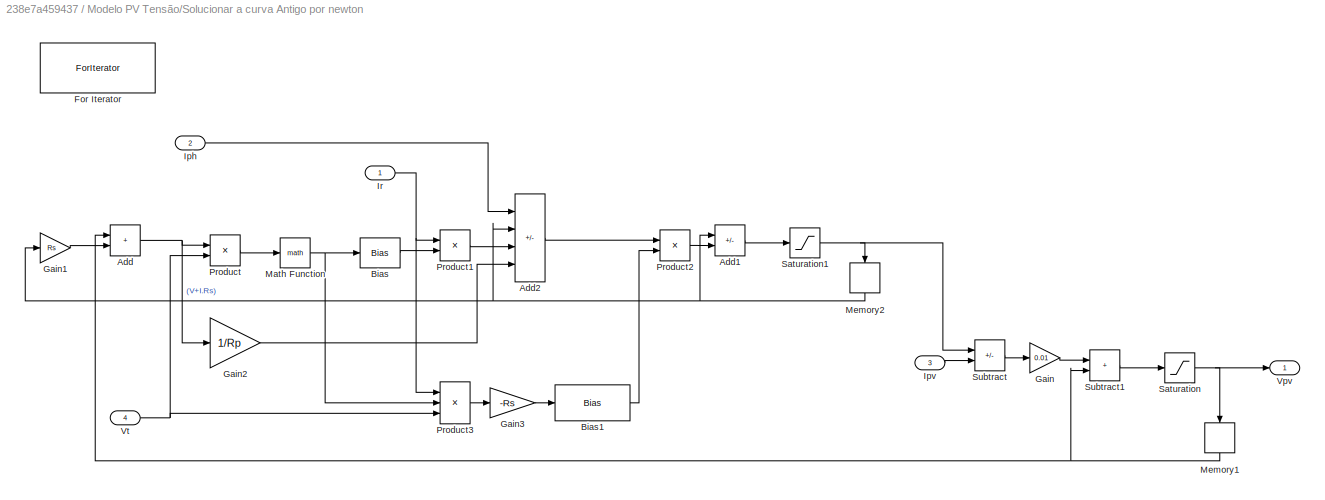
BLOCK [SubSystem] Modelo PV Tensão/Solucionar a curva Antigo por newton
  Commented = on
  Ports = [4, 1]
  RequestExecContextInheritance = off
  TreatAsAtomicUnit = on
BLOCK [Sum] Modelo PV Tensão/Solucionar a curva Antigo por newton/Add
  IconShape = rectangular
  Ports = [2, 1]
BLOCK [Sum] Modelo PV Tensão/Solucionar a curva Antigo por newton/Add1
  IconShape = rectangular
  Inputs = +-
  Ports = [2, 1]
BLOCK [Sum] Modelo PV Tensão/Solucionar a curva Antigo por newton/Add2
  IconShape = rectangular
  Inputs = +---
  Ports = [4, 1]
BLOCK [Bias] Modelo PV Tensão/Solucionar a curva Antigo por newton/Bias
  Bias = -1
  SaturateOnIntegerOverflow = off
BLOCK [Bias] Modelo PV Tensão/Solucionar a curva Antigo por newton/Bias1
  Bias = -1-Rs/Rp
  SaturateOnIntegerOverflow = off
BLOCK [ForIterator] Modelo PV Tensão/Solucionar a curva Antigo por newton/For Iterator
  IterationLimit = 4
  Ports = []
  ShowIterationPort = off
BLOCK [Gain] Modelo PV Tensão/Solucionar a curva Antigo por newton/Gain
  Gain = 0.01
BLOCK [Gain] Modelo PV Tensão/Solucionar a curva Antigo por newton/Gain1
  Gain = Rs
BLOCK [Gain] Modelo PV Tensão/Solucionar a curva Antigo por newton/Gain2
  Gain = 1/Rp
BLOCK [Gain] Modelo PV Tensão/Solucionar a curva Antigo por newton/Gain3
  Gain = -Rs
BLOCK [Inport] Modelo PV Tensão/Solucionar a curva Antigo por newton/Iph
  Port = 2
BLOCK [Inport] Modelo PV Tensão/Solucionar a curva Antigo por newton/Ipv
  Port = 3
BLOCK [Inport] Modelo PV Tensão/Solucionar a curva Antigo por newton/Ir
BLOCK [Math] Modelo PV Tensão/Solucionar a curva Antigo por newton/Math Function
  Ports = [1, 1]
  SignedPower = on
BLOCK [Memory] Modelo PV Tensão/Solucionar a curva Antigo por newton/Memory1
  InheritSampleTime = on
  InitialCondition = Voc
  NameLocation = right
BLOCK [Memory] Modelo PV Tensão/Solucionar a curva Antigo por newton/Memory2
  InheritSampleTime = on
  NameLocation = right
BLOCK [Product] Modelo PV Tensão/Solucionar a curva Antigo por newton/Product
  Inputs = */
  Ports = [2, 1]
BLOCK [Product] Modelo PV Tensão/Solucionar a curva Antigo por newton/Product1
  Ports = [2, 1]
BLOCK [Product] Modelo PV Tensão/Solucionar a curva Antigo por newton/Product2
  Inputs = */
  Ports = [2, 1]
BLOCK [Product] Modelo PV Tensão/Solucionar a curva Antigo por newton/Product3
  Inputs = **/
  Ports = [3, 1]
BLOCK [Saturate] Modelo PV Tensão/Solucionar a curva Antigo por newton/Saturation
  LowerLimit = 0
  UpperLimit = inf
BLOCK [Saturate] Modelo PV Tensão/Solucionar a curva Antigo por newton/Saturation1
  LowerLimit = 0
  UpperLimit = inf
BLOCK [Sum] Modelo PV Tensão/Solucionar a curva Antigo por newton/Subtract
  IconShape = rectangular
  Inputs = +-
  Ports = [2, 1]
BLOCK [Sum] Modelo PV Tensão/Solucionar a curva Antigo por newton/Subtract1
  IconShape = rectangular
  Ports = [2, 1]
BLOCK [Outport] Modelo PV Tensão/Solucionar a curva Antigo por newton/Vpv
BLOCK [Inport] Modelo PV Tensão/Solucionar a curva Antigo por newton/Vt
  Port = 4
BLOCK [SubSystem] Modelo PV Tensão/Subsystem
  Ports = [1, 0, 1]
  RequestExecContextInheritance = off
BLOCK [EnablePort] Modelo PV Tensão/Subsystem/Enable
  Ports = []
BLOCK [Inport] Modelo PV Tensão/Subsystem/In1
BLOCK [S-Function] Modelo PV Tensão/Subsystem/S-Function
  EnableBusSupport = off
  FunctionName = animarcurvaPV
  Parameters = [Voc Isc Rp Rs Ns a]
  Ports = [1, 1]
  SFcnIsStateOwnerBlock = off
  SFunctionDeploymentMode = off
BLOCK [Terminator] Modelo PV Tensão/Subsystem/Terminator
BLOCK [Inport] Modelo PV Tensão/T
  Port = 3
BLOCK [Bias] Modelo PV Tensão/T-Tr
  Bias = -Tr
  SaturateOnIntegerOverflow = off
BLOCK [Bias] Modelo PV Tensão/T-Tr1
  Bias = Isc
  SaturateOnIntegerOverflow = off
BLOCK [InportShadow] Modelo PV Tensão/T1
  Port = 3
BLOCK [Outport] Modelo PV Tensão/Vpv
BLOCK [Gain] Modelo PV Tensão/alpha
  Gain = a
BLOCK [SubSystem] Modelos Animados
  Ports = []
  RequestExecContextInheritance = off
BLOCK [SubSystem] Modelos Animados/Modelo Antena 1 DOF
  Ports = [2, 1]
  RequestExecContextInheritance = off
BLOCK [TransferFcn] Modelos Animados/Modelo Antena 1 DOF/Braço-Robô
  Denominator = [J 1 0]
  Numerator = [K]
BLOCK [Mux] Modelos Animados/Modelo Antena 1 DOF/Mux
  DisplayOption = bar
  Inputs = 3
  Ports = [3, 1]
BLOCK [Inport] Modelos Animados/Modelo Antena 1 DOF/Referência
  Port = 2
BLOCK [S-Function] Modelos Animados/Modelo Antena 1 DOF/S-Function
  EnableBusSupport = off
  FunctionName = animarantena
  Ports = [1]
  SFcnIsStateOwnerBlock = off
  SFunctionDeploymentMode = off
BLOCK [Inport] Modelos Animados/Modelo Antena 1 DOF/Torque
BLOCK [Outport] Modelos Animados/Modelo Antena 1 DOF/Ângulo
BLOCK [SubSystem] Modelos Animados/Modelo Braço Robô 1 DOF
  Ports = [2, 1]
  RequestExecContextInheritance = off
BLOCK [TransferFcn] Modelos Animados/Modelo Braço Robô 1 DOF/Braço-Robô
  Denominator = [J 1 0]
  Numerator = [K]
BLOCK [Mux] Modelos Animados/Modelo Braço Robô 1 DOF/Mux
  DisplayOption = bar
  Inputs = 3
  Ports = [3, 1]
BLOCK [Inport] Modelos Animados/Modelo Braço Robô 1 DOF/Referência
  Port = 2
BLOCK [S-Function] Modelos Animados/Modelo Braço Robô 1 DOF/S-Function
  EnableBusSupport = off
  FunctionName = animarposicao
  Ports = [1]
  SFcnIsStateOwnerBlock = off
  SFunctionDeploymentMode = off
BLOCK [Inport] Modelos Animados/Modelo Braço Robô 1 DOF/Torque
BLOCK [Outport] Modelos Animados/Modelo Braço Robô 1 DOF/Ângulo
BLOCK [SubSystem] Modelos Animados/Submarino Autônomo
  Ports = [2, 3]
  RequestExecContextInheritance = off
BLOCK [S-Function] Modelos Animados/Submarino Autônomo/Animar
  EnableBusSupport = off
  FunctionName = animarUFSS
  Ports = [1]
  SFcnIsStateOwnerBlock = off
  SFunctionDeploymentMode = off
BLOCK [Outport] Modelos Animados/Submarino Autônomo/Estados
  Port = 3
BLOCK [Mux] Modelos Animados/Submarino Autônomo/Mux1
  DisplayOption = bar
  Ports = [4, 1]
BLOCK [Outport] Modelos Animados/Submarino Autônomo/Pitch
  Port = 2
BLOCK [SubSystem] Modelos Animados/Submarino Autônomo/UFSS
  Ports = [1, 4]
  RequestExecContextInheritance = off
BLOCK [TransferFcn] Modelos Animados/Submarino Autônomo/UFSS/Atuador
  Denominator = [1 2]
  Numerator = [2]
BLOCK [TransferFcn] Modelos Animados/Submarino Autônomo/UFSS/Dinamica do Veículo
  Commented = through
  Denominator = conv([1 1.23],[1 0.226 0.0169])
  Numerator = -0.125*[1 0.435]
BLOCK [Outport] Modelos Animados/Submarino Autônomo/UFSS/Elevator
  Port = 3
BLOCK [Gain] Modelos Animados/Submarino Autônomo/UFSS/Gain
  Gain = [0   -0.1250   -0.0544]
  Multiplication = Matrix(K*u)
BLOCK [TransferFcn] Modelos Animados/Submarino Autônomo/UFSS/Int
  Denominator = [1 0]
  Numerator = 1
BLOCK [Mux] Modelos Animados/Submarino Autônomo/UFSS/Mux
  DisplayOption = bar
  Ports = [4, 1]
BLOCK [Outport] Modelos Animados/Submarino Autônomo/UFSS/Pitch
  Port = 2
BLOCK [TransferFcn] Modelos Animados/Submarino Autônomo/UFSS/Profundidade
  Denominator = [0.1 1]
  Numerator = 0.1
BLOCK [StateSpace] Modelos Animados/Submarino Autônomo/UFSS/Veículo
  A = [-1.4560   -0.2949   -0.0208; 1.0000         0         0;    0    1.0000         0]
  B = [1 0 0]'
  C = eye(3)
  D = [0;0;0]
  InitialCondition = 0
  Ports = [1, 1]
BLOCK [Outport] Modelos Animados/Submarino Autônomo/UFSS/h
BLOCK [Inport] Modelos Animados/Submarino Autônomo/UFSS/u
BLOCK [Outport] Modelos Animados/Submarino Autônomo/UFSS/x
  Port = 4
BLOCK [Outport] Modelos Animados/Submarino Autônomo/h
BLOCK [Inport] Modelos Animados/Submarino Autônomo/h_ref
  NameLocation = right
BLOCK [Inport] Modelos Animados/Submarino Autônomo/u
  Port = 2
BLOCK [SubSystem] Modelos Animados/Suspensão 1 DOF
  Ports = [2, 2]
  RequestExecContextInheritance = off
BLOCK [Inport] Modelos Animados/Suspensão 1 DOF/Atuador
  Port = 2
BLOCK [Mux] Modelos Animados/Suspensão 1 DOF/Mux
  DisplayOption = bar
  Inputs = 2
  Ports = [2, 1]
BLOCK [S-Function] Modelos Animados/Suspensão 1 DOF/S-Function
  EnableBusSupport = off
  FunctionName = animarsuspensao
  Ports = [1]
  SFcnIsStateOwnerBlock = off
  SFunctionDeploymentMode = off
BLOCK [SubSystem] Modelos Animados/Suspensão 1 DOF/Sistema de Suspensao
  Ports = [2, 2]
  RequestExecContextInheritance = off
BLOCK [Bias] Modelos Animados/Suspensão 1 DOF/Sistema de Suspensao/Bias
  Bias = 2
  SaturateOnIntegerOverflow = off
BLOCK [Derivative] Modelos Animados/Suspensão 1 DOF/Sistema de Suspensao/Derivative1
  CoefficientInTFapproximation = 10*B
BLOCK [Inport] Modelos Animados/Suspensão 1 DOF/Sistema de Suspensao/F
  Port = 2
BLOCK [Gain] Modelos Animados/Suspensão 1 DOF/Sistema de Suspensao/Gain
  Gain = 1/M
BLOCK [Gain] Modelos Animados/Suspensão 1 DOF/Sistema de Suspensao/Gain1
  Gain = K
  NameLocation = left
BLOCK [Gain] Modelos Animados/Suspensão 1 DOF/Sistema de Suspensao/Gain2
  Gain = B
  NameLocation = left
BLOCK [Integrator] Modelos Animados/Suspensão 1 DOF/Sistema de Suspensao/Integrator
  Ports = [1, 1]
BLOCK [Integrator] Modelos Animados/Suspensão 1 DOF/Sistema de Suspensao/Integrator1
  Ports = [1, 1]
BLOCK [Sum] Modelos Animados/Suspensão 1 DOF/Sistema de Suspensao/Sum1
  Inputs = +++
  Ports = [3, 1]
BLOCK [Sum] Modelos Animados/Suspensão 1 DOF/Sistema de Suspensao/Sum2
  Inputs = +|-
  NameLocation = left
  Ports = [2, 1]
BLOCK [Outport] Modelos Animados/Suspensão 1 DOF/Sistema de Suspensao/acel
  Port = 2
BLOCK [Inport] Modelos Animados/Suspensão 1 DOF/Sistema de Suspensao/x
BLOCK [Outport] Modelos Animados/Suspensão 1 DOF/Sistema de Suspensao/y
BLOCK [Outport] Modelos Animados/Suspensão 1 DOF/acel
  Port = 2
BLOCK [Inport] Modelos Animados/Suspensão 1 DOF/x (solo)
BLOCK [Outport] Modelos Animados/Suspensão 1 DOF/y (massa)
BLOCK [SubSystem] Rede com Chave
  Ports = [2, 2]
  RequestExecContextInheritance = off
BLOCK [Sum] Rede com Chave/Add2
  Inputs = |++
  Ports = [2, 1]
BLOCK [Sum] Rede com Chave/Add4
  Inputs = |+--
  Ports = [3, 1]
BLOCK [Constant] Rede com Chave/Constant
  Value = Rg
BLOCK [Gain] Rede com Chave/Gain4
  Gain = 1/Lg
BLOCK [Outport] Rede com Chave/Ig
  NameLocation = top
  Port = 2
BLOCK [Integrator] Rede com Chave/Integrator
  Ports = [1, 1]
BLOCK [Product] Rede com Chave/Product
  Ports = [2, 1]
BLOCK [Sin] Rede com Chave/Rede
  Amplitude = Vrede*sqrt(2)
  Frequency = frede*2*pi
  NameLocation = top
  Ports = [0, 1]
  SampleTime = 0
BLOCK [Relay] Rede com Chave/Relay
  OffOutputValue = Rsmax
  OffSwitchValue = 0.4
  OnOutputValue = Rsmin
  OnSwitchValue = 0.6
BLOCK [Inport] Rede com Chave/Scon
  NameLocation = right
  Port = 2
BLOCK [Outport] Rede com Chave/Vg
  NameLocation = top
BLOCK [Inport] Rede com Chave/Vo
  NameLocation = top
BLOCK [SubSystem] Turbina Hidraulica
  Ports = [2, 3]
  RequestExecContextInheritance = off
BLOCK [Polyval] Turbina Hidraulica/Cp x Lambda
  Coefs = poly
BLOCK [Product] Turbina Hidraulica/Divide
  Inputs = /*
  Ports = [2, 1]
BLOCK [Gain] Turbina Hidraulica/Gain
  Gain = raio_turbina
BLOCK [Outport] Turbina Hidraulica/Pmec (W)
  Port = 2
BLOCK [Polyval] Turbina Hidraulica/PotHydro
  Coefs = [Area_util*ro/2 0 0 0]
BLOCK [Product] Turbina Hidraulica/Product
  Ports = [2, 1]
BLOCK [Saturate] Turbina Hidraulica/Saturation
  LowerLimit = 0
  UpperLimit = inf
BLOCK [Saturate] Turbina Hidraulica/Saturation1
  LowerLimit = 0.001
  UpperLimit = inf
BLOCK [Saturate] Turbina Hidraulica/Saturation2
  LowerLimit = 0.001
  UpperLimit = inf
BLOCK [Outport] Turbina Hidraulica/T (N.m)
BLOCK [Outport] Turbina Hidraulica/TSR
  NameLocation = left
  Port = 3
BLOCK [Product] Turbina Hidraulica/prod
  Inputs = /*
  Ports = [2, 1]
BLOCK [Inport] Turbina Hidraulica/v  (m//s)
  Port = 2
BLOCK [Inport] Turbina Hidraulica/w (rad//s)
  NameLocation = top
BLOCK [SubSystem] Virtual Synchronous Machine
  Ports = [3, 4]
  RequestExecContextInheritance = off
BLOCK [Gain] Virtual Synchronous Machine/1//J
  Gain = 1/J
BLOCK [Integrator] Virtual Synchronous Machine/Integrator
  InitialCondition = w0
  Ports = [1, 1]
BLOCK [Integrator] Virtual Synchronous Machine/Integrator1
  InitialCondition = pi/2
  Ports = [1, 1]
BLOCK [Gain] Virtual Synchronous Machine/Machine Damping Factor 
  Gain = Dpm
BLOCK [Inport] Virtual Synchronous Machine/MfIf
  Port = 3
BLOCK [SubSystem] Virtual Synchronous Machine/Modelo Elétrico
  Ports = [4, 3]
  RequestExecContextInheritance = off
BLOCK [Inport] Virtual Synchronous Machine/Modelo Elétrico/Corrente do Estator [ia,ib,ic]
  Port = 4
BLOCK [Inport] Virtual Synchronous Machine/Modelo Elétrico/MfIf
  Port = 3
BLOCK [Mux] Virtual Synchronous Machine/Modelo Elétrico/Mux
  DisplayOption = bar
  Inputs = 3
  Ports = [3, 1]
BLOCK [SubSystem] Virtual Synchronous Machine/Modelo Elétrico/Potencia reativa
  Ports = [4, 1]
  RequestExecContextInheritance = off
BLOCK [Inport] Virtual Synchronous Machine/Modelo Elétrico/Potencia reativa/Corrente do Estator [ia,ib,ic]
  Port = 3
BLOCK [Gain] Virtual Synchronous Machine/Modelo Elétrico/Potencia reativa/Gain1
  Gain = -1
BLOCK [Inport] Virtual Synchronous Machine/Modelo Elétrico/Potencia reativa/MfIf
  NameLocation = right
  Port = 2
BLOCK [Product] Virtual Synchronous Machine/Modelo Elétrico/Potencia reativa/Product1
  Ports = [2, 1]
BLOCK [Product] Virtual Synchronous Machine/Modelo Elétrico/Potencia reativa/Product7
  Inputs = 3
  Ports = [3, 1]
BLOCK [Outport] Virtual Synchronous Machine/Modelo Elétrico/Potencia reativa/Q
BLOCK [Sum] Virtual Synchronous Machine/Modelo Elétrico/Potencia reativa/Sum3
  Inputs = +
  Ports = [1, 1]
BLOCK [Trigonometry] Virtual Synchronous Machine/Modelo Elétrico/Potencia reativa/Trigonometric Function1
  Operator = cos
  Ports = [1, 1]
BLOCK [Inport] Virtual Synchronous Machine/Modelo Elétrico/Potencia reativa/Velocidade Angular do Rotor W
  Port = 4
BLOCK [Inport] Virtual Synchronous Machine/Modelo Elétrico/Potencia reativa/[teta,teta-120,teta-240]
  NameLocation = right
BLOCK [Outport] Virtual Synchronous Machine/Modelo Elétrico/Q
  Port = 2
BLOCK [SubSystem] Virtual Synchronous Machine/Modelo Elétrico/Subsystem3
  Ports = [1, 1]
  RequestExecContextInheritance = off
BLOCK [Constant] Virtual Synchronous Machine/Modelo Elétrico/Subsystem3/-120
  Value = (2*pi)/3
BLOCK [Sum] Virtual Synchronous Machine/Modelo Elétrico/Subsystem3/Sum
  Inputs = |+-
  Ports = [2, 1]
BLOCK [Inport] Virtual Synchronous Machine/Modelo Elétrico/Subsystem3/teta
BLOCK [Outport] Virtual Synchronous Machine/Modelo Elétrico/Subsystem3/teta - 120
BLOCK [SubSystem] Virtual Synchronous Machine/Modelo Elétrico/Subsystem4
  Ports = [1, 1]
  RequestExecContextInheritance = off
BLOCK [Constant] Virtual Synchronous Machine/Modelo Elétrico/Subsystem4/-240
  Value = (4*pi)/3
BLOCK [Sum] Virtual Synchronous Machine/Modelo Elétrico/Subsystem4/Sum1
  Inputs = |+-
  Ports = [2, 1]
BLOCK [Inport] Virtual Synchronous Machine/Modelo Elétrico/Subsystem4/teta
  NameLocation = right
BLOCK [Outport] Virtual Synchronous Machine/Modelo Elétrico/Subsystem4/teta - 240
BLOCK [Outport] Virtual Synchronous Machine/Modelo Elétrico/Te
BLOCK [SubSystem] Virtual Synchronous Machine/Modelo Elétrico/Tensoes Induzidas
  Ports = [3, 1]
  RequestExecContextInheritance = off
BLOCK [Inport] Virtual Synchronous Machine/Modelo Elétrico/Tensoes Induzidas/MfIf
  NameLocation = right
  Port = 2
BLOCK [Product] Virtual Synchronous Machine/Modelo Elétrico/Tensoes Induzidas/Product8
  Inputs = 3
  Ports = [3, 1]
BLOCK [Outport] Virtual Synchronous Machine/Modelo Elétrico/Tensoes Induzidas/Tensão Induzida [ea,eb,ec]
BLOCK [Trigonometry] Virtual Synchronous Machine/Modelo Elétrico/Tensoes Induzidas/Trigonometric Function2
  Ports = [1, 1]
BLOCK [Inport] Virtual Synchronous Machine/Modelo Elétrico/Tensoes Induzidas/Velocidade Angular do Rotor W
  NameLocation = right
  Port = 3
BLOCK [Inport] Virtual Synchronous Machine/Modelo Elétrico/Tensoes Induzidas/[teta,teta-120,teta-240]
  NameLocation = right
BLOCK [Outport] Virtual Synchronous Machine/Modelo Elétrico/Tensão Induzida [ea,eb,ec]
  Port = 3
BLOCK [Inport] Virtual Synchronous Machine/Modelo Elétrico/Teta
  Port = 2
BLOCK [SubSystem] Virtual Synchronous Machine/Modelo Elétrico/Torque eletromagnetico
  Ports = [3, 1]
  RequestExecContextInheritance = off
BLOCK [Inport] Virtual Synchronous Machine/Modelo Elétrico/Torque eletromagnetico/Corrente do Estator [ia,ib,ic]
  NameLocation = right
  Port = 3
BLOCK [Inport] Virtual Synchronous Machine/Modelo Elétrico/Torque eletromagnetico/MfIf
  Port = 2
BLOCK [Product] Virtual Synchronous Machine/Modelo Elétrico/Torque eletromagnetico/Product
  Ports = [2, 1]
BLOCK [Product] Virtual Synchronous Machine/Modelo Elétrico/Torque eletromagnetico/Product5
  Ports = [2, 1]
BLOCK [Sum] Virtual Synchronous Machine/Modelo Elétrico/Torque eletromagnetico/Sum2
  Inputs = +
  Ports = [1, 1]
BLOCK [Outport] Virtual Synchronous Machine/Modelo Elétrico/Torque eletromagnetico/Te
BLOCK [Trigonometry] Virtual Synchronous Machine/Modelo Elétrico/Torque eletromagnetico/Trigonometric Function
  Ports = [1, 1]
BLOCK [Inport] Virtual Synchronous Machine/Modelo Elétrico/Torque eletromagnetico/[teta,teta-120,teta-240]
BLOCK [Inport] Virtual Synchronous Machine/Modelo Elétrico/Velocidade Angular do Rotor W
BLOCK [Outport] Virtual Synchronous Machine/P
  Port = 4
BLOCK [Product] Virtual Synchronous Machine/Product1
  InputSameDT = on
  OutDataTypeStr = Inherit: Same as first input
  Ports = [2, 1]
  SaturateOnIntegerOverflow = on
BLOCK [Outport] Virtual Synchronous Machine/Q
  Port = 3
BLOCK [Sum] Virtual Synchronous Machine/Sum1
  Inputs = |+-
  Ports = [2, 1]
BLOCK [Sum] Virtual Synchronous Machine/Sum4
  InputSameDT = on
  Inputs = 1
  OutDataTypeStr = Inherit: Same as first input
  Ports = [1, 1]
  SaturateOnIntegerOverflow = on
BLOCK [Sum] Virtual Synchronous Machine/Sum5
  Inputs = -+|
  Ports = [2, 1]
BLOCK [Inport] Virtual Synchronous Machine/Tapp
  Port = 2
BLOCK [Outport] Virtual Synchronous Machine/W
  Port = 2
BLOCK [Outport] Virtual Synchronous Machine/[ea,eb,ec]
BLOCK [Inport] Virtual Synchronous Machine/[ia,ib,ic]
ANNOTATION Conversores Eletrônicos de Potência/Boost: 1-d
ANNOTATION Conversores Eletrônicos de Potência/Boost: Ii
ANNOTATION Conversores Eletrônicos de Potência/Boost: U1
ANNOTATION Conversores Eletrônicos de Potência/Boost: U2
ANNOTATION Conversores Eletrônicos de Potência/Boost: V0
ANNOTATION Conversores Eletrônicos de Potência/Buck: 1-d
ANNOTATION Conversores Eletrônicos de Potência/Buck: IL
ANNOTATION Conversores Eletrônicos de Potência/Buck: U1
ANNOTATION Conversores Eletrônicos de Potência/Buck: U2
ANNOTATION Conversores Eletrônicos de Potência/Buck: V0
ANNOTATION Conversores Eletrônicos de Potência/Buck-Boost: 1-d
ANNOTATION Conversores Eletrônicos de Potência/Buck-Boost: IL
ANNOTATION Conversores Eletrônicos de Potência/Buck-Boost: U1
ANNOTATION Conversores Eletrônicos de Potência/Buck-Boost: U2
ANNOTATION Conversores Eletrônicos de Potência/Buck-Boost: V0
ANNOTATION Exemplos: Exemplos com os painéis fotovoltaicos
ANNOTATION Exemplos: Exemplos de animação de modelos físicos
ANNOTATION Exemplos: Exemplos dos conversores eletrônicos de potência
ANNOTATION MPPT/MPPT Modified Climbing Hill: Climbing Hill Rule
ANNOTATION MPPT/MPPT Modified Climbing Hill: Direct or Reverse
ANNOTATION MPPT/MPPT Modified Climbing Hill: Variable Step Size Calculation
ANNOTATION Modelo PV Tensão: Corrente de Saturacao reversa da celula
ANNOTATION Modelo PV Tensão: Fotocorrente
LINE Anti-Ilhamento/anti-islanding AFD/+:1 -> Anti-Ilhamento/anti-islanding AFD/2*pi:1
LINE Anti-Ilhamento/anti-islanding AFD/2*pi:1 -> Anti-Ilhamento/anti-islanding AFD/x:1
LINE Anti-Ilhamento/anti-islanding AFD/Caso de falha:1 -> Anti-Ilhamento/anti-islanding AFD/falha:1
LINE Anti-Ilhamento/anti-islanding AFD/Df:1 -> Anti-Ilhamento/anti-islanding AFD/+:2
NET Anti-Ilhamento/anti-islanding AFD/Filtro Passa-alta:1 -> Anti-Ilhamento/anti-islanding AFD/Sinal:1, Anti-Ilhamento/anti-islanding AFD/rampa com detecção por zero:2
LINE Anti-Ilhamento/anti-islanding AFD/Sat2:1 -> Anti-Ilhamento/anti-islanding AFD/x2:1
LINE Anti-Ilhamento/anti-islanding AFD/Sat:1 -> Anti-Ilhamento/anti-islanding AFD/x:2
LINE Anti-Ilhamento/anti-islanding AFD/Sinal:1 -> Anti-Ilhamento/anti-islanding AFD/x2:2
LINE Anti-Ilhamento/anti-islanding AFD/cte:1 -> Anti-Ilhamento/anti-islanding AFD/rampa com detecção por zero:1
NET Anti-Ilhamento/anti-islanding AFD/freal:1 -> Anti-Ilhamento/anti-islanding AFD/+:1, Anti-Ilhamento/anti-islanding AFD/Caso de falha:1
LINE Anti-Ilhamento/anti-islanding AFD/rampa com detecção por zero:1 -> Anti-Ilhamento/anti-islanding AFD/Sat:1
LINE Anti-Ilhamento/anti-islanding AFD/seno real:1 -> Anti-Ilhamento/anti-islanding AFD/Filtro Passa-alta:1
LINE Anti-Ilhamento/anti-islanding AFD/seno:1 -> Anti-Ilhamento/anti-islanding AFD/Sat2:1
LINE Anti-Ilhamento/anti-islanding AFD/x2:1 -> Anti-Ilhamento/anti-islanding AFD/mod:1
LINE Anti-Ilhamento/anti-islanding AFD/x:1 -> Anti-Ilhamento/anti-islanding AFD/seno:1
LINE Anti-Ilhamento/anti-islanding HF impedance/+:1 -> Anti-Ilhamento/anti-islanding HF impedance/Ref. modificada:1
LINE Anti-Ilhamento/anti-islanding HF impedance/>= max:1 -> Anti-Ilhamento/anti-islanding HF impedance/falha:1
LINE Anti-Ilhamento/anti-islanding HF impedance/Abs:1 -> Anti-Ilhamento/anti-islanding HF impedance/>= max:1
LINE Anti-Ilhamento/anti-islanding HF impedance/Ref.:1 -> Anti-Ilhamento/anti-islanding HF impedance/+:1
NET Anti-Ilhamento/anti-islanding HF impedance/Sinal de alta frequencia:1 -> Anti-Ilhamento/anti-islanding HF impedance/+:2, Anti-Ilhamento/anti-islanding HF impedance/comparar:1
LINE Anti-Ilhamento/anti-islanding HF impedance/Vo:1 -> Anti-Ilhamento/anti-islanding HF impedance/comparar:2
LINE Anti-Ilhamento/anti-islanding HF impedance/comparar:1 -> Anti-Ilhamento/anti-islanding HF impedance/Abs:1
LINE Anti-Ilhamento/anti-islanding SMS/Abs:1 -> Anti-Ilhamento/anti-islanding SMS/caso de falha:1
LINE Anti-Ilhamento/anti-islanding SMS/Add1:1 -> Anti-Ilhamento/anti-islanding SMS/wt+ang:1
NET Anti-Ilhamento/anti-islanding SMS/Add2:1 -> Anti-Ilhamento/anti-islanding SMS/Abs:1, Anti-Ilhamento/anti-islanding SMS/Divide:1
NET Anti-Ilhamento/anti-islanding SMS/Add3:1 -> Anti-Ilhamento/anti-islanding SMS/Divide:2, Anti-Ilhamento/anti-islanding SMS/caso de falha:2
LINE Anti-Ilhamento/anti-islanding SMS/Divide:1 -> Anti-Ilhamento/anti-islanding SMS/pi//2:1
LINE Anti-Ilhamento/anti-islanding SMS/ang_max:1 -> Anti-Ilhamento/anti-islanding SMS/Add1:2
LINE Anti-Ilhamento/anti-islanding SMS/caso de falha:1 -> Anti-Ilhamento/anti-islanding SMS/falha:1
LINE Anti-Ilhamento/anti-islanding SMS/fmax:1 -> Anti-Ilhamento/anti-islanding SMS/Add3:1
NET Anti-Ilhamento/anti-islanding SMS/fnominal:1 -> Anti-Ilhamento/anti-islanding SMS/Add2:2, Anti-Ilhamento/anti-islanding SMS/Add3:2
LINE Anti-Ilhamento/anti-islanding SMS/freal:1 -> Anti-Ilhamento/anti-islanding SMS/Add2:1
LINE Anti-Ilhamento/anti-islanding SMS/pi//2:1 -> Anti-Ilhamento/anti-islanding SMS/seno:1
LINE Anti-Ilhamento/anti-islanding SMS/seno:1 -> Anti-Ilhamento/anti-islanding SMS/ang_max:1
LINE Anti-Ilhamento/anti-islanding SMS/wt:1 -> Anti-Ilhamento/anti-islanding SMS/Add1:1
LINE Calcular Overshoot/Difference:1 -> Calcular Overshoot/Mux2:1
LINE Calcular Overshoot/Divide:1 -> Calcular Overshoot/Gain1:1
LINE Calcular Overshoot/Gain1:1 -> Calcular Overshoot/UP%:1
LINE Calcular Overshoot/Memory1:1 -> Calcular Overshoot/Mux2:2
LINE Calcular Overshoot/Memory:1 -> Calcular Overshoot/Mux1:2
NET Calcular Overshoot/MinMax2:1 -> Calcular Overshoot/Divide:2, Calcular Overshoot/Memory1:1, Calcular Overshoot/Subtract:2, Calcular Overshoot/amplitude:1
NET Calcular Overshoot/MinMax:1 -> Calcular Overshoot/Divide:1, Calcular Overshoot/Memory:1
LINE Calcular Overshoot/Mux1:1 -> Calcular Overshoot/MinMax:1
LINE Calcular Overshoot/Mux2:1 -> Calcular Overshoot/MinMax2:1
LINE Calcular Overshoot/Subtract:1 -> Calcular Overshoot/Mux1:1
LINE Calcular Overshoot/r:1 -> Calcular Overshoot/Difference:1
LINE Calcular Overshoot/y:1 -> Calcular Overshoot/Subtract:1
LINE Calcular Tempo de Assentamento/Abs:1 -> Calcular Tempo de Assentamento/Compare To Constant1:1
LINE Calcular Tempo de Assentamento/Compare To Constant1:1 -> Calcular Tempo de Assentamento/Logical Operator:1
LINE Calcular Tempo de Assentamento/Compare To Constant:1 -> Calcular Tempo de Assentamento/Logical Operator:2
LINE Calcular Tempo de Assentamento/Data Type Conversion:1 -> Calcular Tempo de Assentamento/Integrator Limited:1
LINE Calcular Tempo de Assentamento/Integrator Limited:1 -> Calcular Tempo de Assentamento/Ts:1
LINE Calcular Tempo de Assentamento/Logical Operator:1 -> Calcular Tempo de Assentamento/Data Type Conversion:1
LINE Calcular Tempo de Assentamento/Sum1:1 -> Calcular Tempo de Assentamento/Abs:1
LINE Calcular Tempo de Assentamento/r:1 -> Calcular Tempo de Assentamento/Sum1:2
NET Calcular Tempo de Assentamento/y:1 -> Calcular Tempo de Assentamento/Compare To Constant:1, Calcular Tempo de Assentamento/Integrator Limited:2, Calcular Tempo de Assentamento/Sum1:1
LINE Carga com Chave/Add1:1 -> Carga com Chave/Product:1
LINE Carga com Chave/Add2:1 -> Carga com Chave/Product:3
LINE Carga com Chave/Add3:1 -> Carga com Chave/Ii:1
NET Carga com Chave/Constant:1 -> Carga com Chave/Add2:1, Carga com Chave/Product2:2, Carga com Chave/Product:2
NET Carga com Chave/Io:1 -> Carga com Chave/Add3:2, Carga com Chave/Product1:1
LINE Carga com Chave/Product1:1 -> Carga com Chave/Add1:2
LINE Carga com Chave/Product2:1 -> Carga com Chave/Add3:1
NET Carga com Chave/Product:1 -> Carga com Chave/Product2:1, Carga com Chave/Vo:1
NET Carga com Chave/Relay:1 -> Carga com Chave/Add2:2, Carga com Chave/Product1:2
LINE Carga com Chave/Scon:1 -> Carga com Chave/Relay:1
LINE Carga com Chave/Vi:1 -> Carga com Chave/Add1:1
LINE Conexão Rede/Carga com Chave:1 -> Conexão Rede/Rede com Chave:1
LINE Conexão Rede/Carga com Chave:2 -> Conexão Rede/Ii:1
LINE Conexão Rede/Rede com Chave:1 -> Conexão Rede/Vg:1
NET Conexão Rede/Rede com Chave:2 -> Conexão Rede/Carga com Chave:2, Conexão Rede/Ig:1
LINE Conexão Rede/Scon:1 -> Conexão Rede/Carga com Chave:3
LINE Conexão Rede/Sgrid:1 -> Conexão Rede/Rede com Chave:2
LINE Conexão Rede/Vi:1 -> Conexão Rede/Carga com Chave:1
LINE Conversores Eletrônicos de Potência/Boost/1//C:1 -> Conversores Eletrônicos de Potência/Boost/Integrator:1
LINE Conversores Eletrônicos de Potência/Boost/1//L:1 -> Conversores Eletrônicos de Potência/Boost/Integrator1:1
LINE Conversores Eletrônicos de Potência/Boost/1//R:1 -> Conversores Eletrônicos de Potência/Boost/Sum2:2
NET Conversores Eletrônicos de Potência/Boost/E:1 -> Conversores Eletrônicos de Potência/Boost/Sum1:2, Conversores Eletrônicos de Potência/Boost/Tempo de Condução do Diodo (MCC ou MCD):2
LINE Conversores Eletrônicos de Potência/Boost/I out:1 -> Conversores Eletrônicos de Potência/Boost/Sum2:1
NET Conversores Eletrônicos de Potência/Boost/Integrator1:1 -> Conversores Eletrônicos de Potência/Boost/I in:1, Conversores Eletrônicos de Potência/Boost/Product2:2, Conversores Eletrônicos de Potência/Boost/Queda de Tensão Média Chave e Diodo:3, Conversores Eletrônicos de Potência/Boost/RL:1, Conversores Eletrônicos de Potência/Boost/Tempo de Condução do Diodo (MCC ou MCD):3
NET Conversores Eletrônicos de Potência/Boost/Integrator:1 -> Conversores Eletrônicos de Potência/Boost/1//R:1, Conversores Eletrônicos de Potência/Boost/Product1:2, Conversores Eletrônicos de Potência/Boost/V out:1
LINE Conversores Eletrônicos de Potência/Boost/Product1:1 -> Conversores Eletrônicos de Potência/Boost/Sum1:1
LINE Conversores Eletrônicos de Potência/Boost/Product2:1 -> Conversores Eletrônicos de Potência/Boost/Sum:2
LINE Conversores Eletrônicos de Potência/Boost/Queda de Tensão Média Chave e Diodo:1 -> Conversores Eletrônicos de Potência/Boost/Sum1:3
LINE Conversores Eletrônicos de Potência/Boost/RL:1 -> Conversores Eletrônicos de Potência/Boost/Sum1:4
LINE Conversores Eletrônicos de Potência/Boost/Sum1:1 -> Conversores Eletrônicos de Potência/Boost/1//L:1
LINE Conversores Eletrônicos de Potência/Boost/Sum2:1 -> Conversores Eletrônicos de Potência/Boost/Sum:1
LINE Conversores Eletrônicos de Potência/Boost/Sum:1 -> Conversores Eletrônicos de Potência/Boost/1//C:1
NET Conversores Eletrônicos de Potência/Boost/Tempo de Condução do Diodo (MCC ou MCD):1 -> Conversores Eletrônicos de Potência/Boost/Product1:1, Conversores Eletrônicos de Potência/Boost/Product2:1, Conversores Eletrônicos de Potência/Boost/Queda de Tensão Média Chave e Diodo:2
NET Conversores Eletrônicos de Potência/Boost/d:1 -> Conversores Eletrônicos de Potência/Boost/Queda de Tensão Média Chave e Diodo:1, Conversores Eletrônicos de Potência/Boost/Tempo de Condução do Diodo (MCC ou MCD):1
LINE Conversores Eletrônicos de Potência/Buck-Boost/1//L1:1 -> Conversores Eletrônicos de Potência/Buck-Boost/Integrator:1
LINE Conversores Eletrônicos de Potência/Buck-Boost/1//L2:1 -> Conversores Eletrônicos de Potência/Buck-Boost/Sum:2
LINE Conversores Eletrônicos de Potência/Buck-Boost/1//L:1 -> Conversores Eletrônicos de Potência/Buck-Boost/Integrator1:1
NET Conversores Eletrônicos de Potência/Buck-Boost/E:1 -> Conversores Eletrônicos de Potência/Buck-Boost/Product3:2, Conversores Eletrônicos de Potência/Buck-Boost/Tempo de Condução do Diodo (MCC ou MCD):2
LINE Conversores Eletrônicos de Potência/Buck-Boost/I out:1 -> Conversores Eletrônicos de Potência/Buck-Boost/Sum:1
NET Conversores Eletrônicos de Potência/Buck-Boost/Integrator1:1 -> Conversores Eletrônicos de Potência/Buck-Boost/Product2:2, Conversores Eletrônicos de Potência/Buck-Boost/Product4:2, Conversores Eletrônicos de Potência/Buck-Boost/Queda de Tensão Média Chave e Diodo:3, Conversores Eletrônicos de Potência/Buck-Boost/Tempo de Condução do Diodo (MCC ou MCD):3
NET Conversores Eletrônicos de Potência/Buck-Boost/Integrator:1 -> Conversores Eletrônicos de Potência/Buck-Boost/1//L2:1, Conversores Eletrônicos de Potência/Buck-Boost/Product1:2, Conversores Eletrônicos de Potência/Buck-Boost/V out:1
LINE Conversores Eletrônicos de Potência/Buck-Boost/Product1:1 -> Conversores Eletrônicos de Potência/Buck-Boost/Sum1:1
LINE Conversores Eletrônicos de Potência/Buck-Boost/Product2:1 -> Conversores Eletrônicos de Potência/Buck-Boost/Sum:3
LINE Conversores Eletrônicos de Potência/Buck-Boost/Product3:1 -> Conversores Eletrônicos de Potência/Buck-Boost/Sum1:2
LINE Conversores Eletrônicos de Potência/Buck-Boost/Product4:1 -> Conversores Eletrônicos de Potência/Buck-Boost/I in:1
LINE Conversores Eletrônicos de Potência/Buck-Boost/Queda de Tensão Média Chave e Diodo:1 -> Conversores Eletrônicos de Potência/Buck-Boost/Sum1:3
LINE Conversores Eletrônicos de Potência/Buck-Boost/Sum1:1 -> Conversores Eletrônicos de Potência/Buck-Boost/1//L:1
LINE Conversores Eletrônicos de Potência/Buck-Boost/Sum:1 -> Conversores Eletrônicos de Potência/Buck-Boost/1//L1:1
NET Conversores Eletrônicos de Potência/Buck-Boost/Tempo de Condução do Diodo (MCC ou MCD):1 -> Conversores Eletrônicos de Potência/Buck-Boost/Product1:1, Conversores Eletrônicos de Potência/Buck-Boost/Product2:1, Conversores Eletrônicos de Potência/Buck-Boost/Queda de Tensão Média Chave e Diodo:2
NET Conversores Eletrônicos de Potência/Buck-Boost/d:1 -> Conversores Eletrônicos de Potência/Buck-Boost/Product3:1, Conversores Eletrônicos de Potência/Buck-Boost/Product4:1, Conversores Eletrônicos de Potência/Buck-Boost/Queda de Tensão Média Chave e Diodo:1, Conversores Eletrônicos de Potência/Buck-Boost/Tempo de Condução do Diodo (MCC ou MCD):1
LINE Conversores Eletrônicos de Potência/Buck/-1//C:1 -> Conversores Eletrônicos de Potência/Buck/Integrator:1
LINE Conversores Eletrônicos de Potência/Buck/1//L:1 -> Conversores Eletrônicos de Potência/Buck/Integrator1:1
LINE Conversores Eletrônicos de Potência/Buck/1//R:1 -> Conversores Eletrônicos de Potência/Buck/Sum4:2
NET Conversores Eletrônicos de Potência/Buck/E:1 -> Conversores Eletrônicos de Potência/Buck/Product3:2, Conversores Eletrônicos de Potência/Buck/Sum3:2
LINE Conversores Eletrônicos de Potência/Buck/I out:1 -> Conversores Eletrônicos de Potência/Buck/Sum4:1
NET Conversores Eletrônicos de Potência/Buck/Integrator1:1 -> Conversores Eletrônicos de Potência/Buck/Product2:2, Conversores Eletrônicos de Potência/Buck/Product4:2, Conversores Eletrônicos de Potência/Buck/Queda de Tensão Média Chave e Diodo:3, Conversores Eletrônicos de Potência/Buck/Tempo de Condução do Diodo (MCC ou MCD):3
NET Conversores Eletrônicos de Potência/Buck/Integrator:1 -> Conversores Eletrônicos de Potência/Buck/1//R:1, Conversores Eletrônicos de Potência/Buck/Product1:2, Conversores Eletrônicos de Potência/Buck/Sum3:1, Conversores Eletrônicos de Potência/Buck/V out:1
LINE Conversores Eletrônicos de Potência/Buck/Product1:1 -> Conversores Eletrônicos de Potência/Buck/Sum1:1
LINE Conversores Eletrônicos de Potência/Buck/Product2:1 -> Conversores Eletrônicos de Potência/Buck/Sum:2
LINE Conversores Eletrônicos de Potência/Buck/Product3:1 -> Conversores Eletrônicos de Potência/Buck/Sum1:2
LINE Conversores Eletrônicos de Potência/Buck/Product4:1 -> Conversores Eletrônicos de Potência/Buck/I in:1
LINE Conversores Eletrônicos de Potência/Buck/Queda de Tensão Média Chave e Diodo:1 -> Conversores Eletrônicos de Potência/Buck/Sum1:3
LINE Conversores Eletrônicos de Potência/Buck/Sum1:1 -> Conversores Eletrônicos de Potência/Buck/1//L:1
NET Conversores Eletrônicos de Potência/Buck/Sum2:1 -> Conversores Eletrônicos de Potência/Buck/Product1:1, Conversores Eletrônicos de Potência/Buck/Product2:1
LINE Conversores Eletrônicos de Potência/Buck/Sum3:1 -> Conversores Eletrônicos de Potência/Buck/Tempo de Condução do Diodo (MCC ou MCD):2
LINE Conversores Eletrônicos de Potência/Buck/Sum4:1 -> Conversores Eletrônicos de Potência/Buck/Sum:1
LINE Conversores Eletrônicos de Potência/Buck/Sum:1 -> Conversores Eletrônicos de Potência/Buck/-1//C:1
NET Conversores Eletrônicos de Potência/Buck/Tempo de Condução do Diodo (MCC ou MCD):1 -> Conversores Eletrônicos de Potência/Buck/Queda de Tensão Média Chave e Diodo:2, Conversores Eletrônicos de Potência/Buck/Sum2:2
NET Conversores Eletrônicos de Potência/Buck/d:1 -> Conversores Eletrônicos de Potência/Buck/Product3:1, Conversores Eletrônicos de Potência/Buck/Product4:1, Conversores Eletrônicos de Potência/Buck/Queda de Tensão Média Chave e Diodo:1, Conversores Eletrônicos de Potência/Buck/Sum2:1, Conversores Eletrônicos de Potência/Buck/Tempo de Condução do Diodo (MCC ou MCD):1
LINE Conversores Eletrônicos de Potência/Inversor Boost TriState/1//C:1 -> Conversores Eletrônicos de Potência/Inversor Boost TriState/Integrator1:1
LINE Conversores Eletrônicos de Potência/Inversor Boost TriState/1//L:1 -> Conversores Eletrônicos de Potência/Inversor Boost TriState/Integrator:1
LINE Conversores Eletrônicos de Potência/Inversor Boost TriState/Add1:1 -> Conversores Eletrônicos de Potência/Inversor Boost TriState/1//C:1
NET Conversores Eletrônicos de Potência/Inversor Boost TriState/Add2:1 -> Conversores Eletrônicos de Potência/Inversor Boost TriState/Product3:1, Conversores Eletrônicos de Potência/Inversor Boost TriState/Product:1
NET Conversores Eletrônicos de Potência/Inversor Boost TriState/Add3:1 -> Conversores Eletrônicos de Potência/Inversor Boost TriState/Product1:2, Conversores Eletrônicos de Potência/Inversor Boost TriState/Product2:3
LINE Conversores Eletrônicos de Potência/Inversor Boost TriState/Add:1 -> Conversores Eletrônicos de Potência/Inversor Boost TriState/1//L:1
LINE Conversores Eletrônicos de Potência/Inversor Boost TriState/Compare To Zero:1 -> Conversores Eletrônicos de Potência/Inversor Boost TriState/DTC:1
LINE Conversores Eletrônicos de Potência/Inversor Boost TriState/Constant:1 -> Conversores Eletrônicos de Potência/Inversor Boost TriState/Add3:2
LINE Conversores Eletrônicos de Potência/Inversor Boost TriState/D1:1 -> Conversores Eletrônicos de Potência/Inversor Boost TriState/Add2:1
NET Conversores Eletrônicos de Potência/Inversor Boost TriState/D2:1 -> Conversores Eletrônicos de Potência/Inversor Boost TriState/Add2:2, Conversores Eletrônicos de Potência/Inversor Boost TriState/Compare To Zero:1, Conversores Eletrônicos de Potência/Inversor Boost TriState/Product1:1, Conversores Eletrônicos de Potência/Inversor Boost TriState/Product2:2
LINE Conversores Eletrônicos de Potência/Inversor Boost TriState/DTC:1 -> Conversores Eletrônicos de Potência/Inversor Boost TriState/x:1
LINE Conversores Eletrônicos de Potência/Inversor Boost TriState/I out:1 -> Conversores Eletrônicos de Potência/Inversor Boost TriState/Add1:2
NET Conversores Eletrônicos de Potência/Inversor Boost TriState/Integrator1:1 -> Conversores Eletrônicos de Potência/Inversor Boost TriState/Product1:3, Conversores Eletrônicos de Potência/Inversor Boost TriState/Vo:1
NET Conversores Eletrônicos de Potência/Inversor Boost TriState/Integrator:1 -> Conversores Eletrônicos de Potência/Inversor Boost TriState/ILi:1, Conversores Eletrônicos de Potência/Inversor Boost TriState/Product2:1, Conversores Eletrônicos de Potência/Inversor Boost TriState/Product3:2
LINE Conversores Eletrônicos de Potência/Inversor Boost TriState/Product1:1 -> Conversores Eletrônicos de Potência/Inversor Boost TriState/Add:2
LINE Conversores Eletrônicos de Potência/Inversor Boost TriState/Product2:1 -> Conversores Eletrônicos de Potência/Inversor Boost TriState/Add1:1
LINE Conversores Eletrônicos de Potência/Inversor Boost TriState/Product3:1 -> Conversores Eletrônicos de Potência/Inversor Boost TriState/Ii:1
LINE Conversores Eletrônicos de Potência/Inversor Boost TriState/Product:1 -> Conversores Eletrônicos de Potência/Inversor Boost TriState/Add:1
LINE Conversores Eletrônicos de Potência/Inversor Boost TriState/V in:1 -> Conversores Eletrônicos de Potência/Inversor Boost TriState/Product:2
LINE Conversores Eletrônicos de Potência/Inversor Boost TriState/x:1 -> Conversores Eletrônicos de Potência/Inversor Boost TriState/Add3:1
LINE Conversores Eletrônicos de Potência/Inversor Buck-Boost TriState/1//C:1 -> Conversores Eletrônicos de Potência/Inversor Buck-Boost TriState/Integrator1:1
LINE Conversores Eletrônicos de Potência/Inversor Buck-Boost TriState/1//L:1 -> Conversores Eletrônicos de Potência/Inversor Buck-Boost TriState/Integrator:1
LINE Conversores Eletrônicos de Potência/Inversor Buck-Boost TriState/Add1:1 -> Conversores Eletrônicos de Potência/Inversor Buck-Boost TriState/1//C:1
NET Conversores Eletrônicos de Potência/Inversor Buck-Boost TriState/Add3:1 -> Conversores Eletrônicos de Potência/Inversor Buck-Boost TriState/Product1:2, Conversores Eletrônicos de Potência/Inversor Buck-Boost TriState/Product2:3
LINE Conversores Eletrônicos de Potência/Inversor Buck-Boost TriState/Add:1 -> Conversores Eletrônicos de Potência/Inversor Buck-Boost TriState/1//L:1
LINE Conversores Eletrônicos de Potência/Inversor Buck-Boost TriState/Compare To Zero:1 -> Conversores Eletrônicos de Potência/Inversor Buck-Boost TriState/DTC:1
LINE Conversores Eletrônicos de Potência/Inversor Buck-Boost TriState/Constant:1 -> Conversores Eletrônicos de Potência/Inversor Buck-Boost TriState/Add3:2
NET Conversores Eletrônicos de Potência/Inversor Buck-Boost TriState/D1:1 -> Conversores Eletrônicos de Potência/Inversor Buck-Boost TriState/Product3:1, Conversores Eletrônicos de Potência/Inversor Buck-Boost TriState/Product:1
NET Conversores Eletrônicos de Potência/Inversor Buck-Boost TriState/D2:1 -> Conversores Eletrônicos de Potência/Inversor Buck-Boost TriState/Compare To Zero:1, Conversores Eletrônicos de Potência/Inversor Buck-Boost TriState/Product1:1, Conversores Eletrônicos de Potência/Inversor Buck-Boost TriState/Product2:2
LINE Conversores Eletrônicos de Potência/Inversor Buck-Boost TriState/DTC:1 -> Conversores Eletrônicos de Potência/Inversor Buck-Boost TriState/x:1
LINE Conversores Eletrônicos de Potência/Inversor Buck-Boost TriState/I out:1 -> Conversores Eletrônicos de Potência/Inversor Buck-Boost TriState/Add1:2
NET Conversores Eletrônicos de Potência/Inversor Buck-Boost TriState/Integrator1:1 -> Conversores Eletrônicos de Potência/Inversor Buck-Boost TriState/Product1:3, Conversores Eletrônicos de Potência/Inversor Buck-Boost TriState/Vo:1
NET Conversores Eletrônicos de Potência/Inversor Buck-Boost TriState/Integrator:1 -> Conversores Eletrônicos de Potência/Inversor Buck-Boost TriState/ILi:1, Conversores Eletrônicos de Potência/Inversor Buck-Boost TriState/Product2:1, Conversores Eletrônicos de Potência/Inversor Buck-Boost TriState/Product3:2
LINE Conversores Eletrônicos de Potência/Inversor Buck-Boost TriState/Product1:1 -> Conversores Eletrônicos de Potência/Inversor Buck-Boost TriState/Add:2
LINE Conversores Eletrônicos de Potência/Inversor Buck-Boost TriState/Product2:1 -> Conversores Eletrônicos de Potência/Inversor Buck-Boost TriState/Add1:1
LINE Conversores Eletrônicos de Potência/Inversor Buck-Boost TriState/Product3:1 -> Conversores Eletrônicos de Potência/Inversor Buck-Boost TriState/Ii:1
LINE Conversores Eletrônicos de Potência/Inversor Buck-Boost TriState/Product:1 -> Conversores Eletrônicos de Potência/Inversor Buck-Boost TriState/Add:1
LINE Conversores Eletrônicos de Potência/Inversor Buck-Boost TriState/V in:1 -> Conversores Eletrônicos de Potência/Inversor Buck-Boost TriState/Product:2
LINE Conversores Eletrônicos de Potência/Inversor Buck-Boost TriState/x:1 -> Conversores Eletrônicos de Potência/Inversor Buck-Boost TriState/Add3:1
LINE Conversores Eletrônicos de Potência/Inversor VSI/1//C:1 -> Conversores Eletrônicos de Potência/Inversor VSI/Integrator1:1
LINE Conversores Eletrônicos de Potência/Inversor VSI/1//L:1 -> Conversores Eletrônicos de Potência/Inversor VSI/Integrator:1
LINE Conversores Eletrônicos de Potência/Inversor VSI/Add1:1 -> Conversores Eletrônicos de Potência/Inversor VSI/1//C:1
LINE Conversores Eletrônicos de Potência/Inversor VSI/Add:1 -> Conversores Eletrônicos de Potência/Inversor VSI/1//L:1
LINE Conversores Eletrônicos de Potência/Inversor VSI/I out:1 -> Conversores Eletrônicos de Potência/Inversor VSI/Add1:2
NET Conversores Eletrônicos de Potência/Inversor VSI/Integrator1:1 -> Conversores Eletrônicos de Potência/Inversor VSI/Add:2, Conversores Eletrônicos de Potência/Inversor VSI/Vo:1
NET Conversores Eletrônicos de Potência/Inversor VSI/Integrator:1 -> Conversores Eletrônicos de Potência/Inversor VSI/Add1:1, Conversores Eletrônicos de Potência/Inversor VSI/ILi:1, Conversores Eletrônicos de Potência/Inversor VSI/Product3:2, Conversores Eletrônicos de Potência/Inversor VSI/Rl:1
LINE Conversores Eletrônicos de Potência/Inversor VSI/Product3:1 -> Conversores Eletrônicos de Potência/Inversor VSI/Ii:1
LINE Conversores Eletrônicos de Potência/Inversor VSI/Product:1 -> Conversores Eletrônicos de Potência/Inversor VSI/Add:1
LINE Conversores Eletrônicos de Potência/Inversor VSI/Rl:1 -> Conversores Eletrônicos de Potência/Inversor VSI/Add:3
LINE Conversores Eletrônicos de Potência/Inversor VSI/V in:1 -> Conversores Eletrônicos de Potência/Inversor VSI/Product:2
NET Conversores Eletrônicos de Potência/Inversor VSI/m:1 -> Conversores Eletrônicos de Potência/Inversor VSI/Product3:1, Conversores Eletrônicos de Potência/Inversor VSI/Product:1
LINE Conversores Eletrônicos de Potência/Queda de Tensão Média Chave e Diodo/Bias1:1 -> Conversores Eletrônicos de Potência/Queda de Tensão Média Chave e Diodo/Product1:3
LINE Conversores Eletrônicos de Potência/Queda de Tensão Média Chave e Diodo/Bias:1 -> Conversores Eletrônicos de Potência/Queda de Tensão Média Chave e Diodo/Product3:3
NET Conversores Eletrônicos de Potência/Queda de Tensão Média Chave e Diodo/Constant1:1 -> Conversores Eletrônicos de Potência/Queda de Tensão Média Chave e Diodo/Product1:1, Conversores Eletrônicos de Potência/Queda de Tensão Média Chave e Diodo/Product3:1
LINE Conversores Eletrônicos de Potência/Queda de Tensão Média Chave e Diodo/D1:1 -> Conversores Eletrônicos de Potência/Queda de Tensão Média Chave e Diodo/Product3:2
LINE Conversores Eletrônicos de Potência/Queda de Tensão Média Chave e Diodo/D2:1 -> Conversores Eletrônicos de Potência/Queda de Tensão Média Chave e Diodo/Product1:2
NET Conversores Eletrônicos de Potência/Queda de Tensão Média Chave e Diodo/IL:1 -> Conversores Eletrônicos de Potência/Queda de Tensão Média Chave e Diodo/rd:1, Conversores Eletrônicos de Potência/Queda de Tensão Média Chave e Diodo/rs:1
LINE Conversores Eletrônicos de Potência/Queda de Tensão Média Chave e Diodo/Product1:1 -> Conversores Eletrônicos de Potência/Queda de Tensão Média Chave e Diodo/Sum3:2
LINE Conversores Eletrônicos de Potência/Queda de Tensão Média Chave e Diodo/Product3:1 -> Conversores Eletrônicos de Potência/Queda de Tensão Média Chave e Diodo/Sum3:1
LINE Conversores Eletrônicos de Potência/Queda de Tensão Média Chave e Diodo/Sum3:1 -> Conversores Eletrônicos de Potência/Queda de Tensão Média Chave e Diodo/Queda:1
LINE Conversores Eletrônicos de Potência/Queda de Tensão Média Chave e Diodo/rd:1 -> Conversores Eletrônicos de Potência/Queda de Tensão Média Chave e Diodo/Bias1:1
LINE Conversores Eletrônicos de Potência/Queda de Tensão Média Chave e Diodo/rs:1 -> Conversores Eletrônicos de Potência/Queda de Tensão Média Chave e Diodo/Bias:1
LINE Conversores Eletrônicos de Potência/Tempo de Condução do Diodo (MCC ou MCD)/0 a 1:1 -> Conversores Eletrônicos de Potência/Tempo de Condução do Diodo (MCC ou MCD)/Sum3:2
NET Conversores Eletrônicos de Potência/Tempo de Condução do Diodo (MCC ou MCD)/D1:1 -> Conversores Eletrônicos de Potência/Tempo de Condução do Diodo (MCC ou MCD)/Saturation:1, Conversores Eletrônicos de Potência/Tempo de Condução do Diodo (MCC ou MCD)/Sum3:1
LINE Conversores Eletrônicos de Potência/Tempo de Condução do Diodo (MCC ou MCD)/IL:1 -> Conversores Eletrônicos de Potência/Tempo de Condução do Diodo (MCC ou MCD)/L//Ts:1
LINE Conversores Eletrônicos de Potência/Tempo de Condução do Diodo (MCC ou MCD)/L//Ts:1 -> Conversores Eletrônicos de Potência/Tempo de Condução do Diodo (MCC ou MCD)/Product4:2
LINE Conversores Eletrônicos de Potência/Tempo de Condução do Diodo (MCC ou MCD)/Product4:1 -> Conversores Eletrônicos de Potência/Tempo de Condução do Diodo (MCC ou MCD)/0 a 1:1
LINE Conversores Eletrônicos de Potência/Tempo de Condução do Diodo (MCC ou MCD)/Saturation1:1 -> Conversores Eletrônicos de Potência/Tempo de Condução do Diodo (MCC ou MCD)/Product4:1
LINE Conversores Eletrônicos de Potência/Tempo de Condução do Diodo (MCC ou MCD)/Saturation:1 -> Conversores Eletrônicos de Potência/Tempo de Condução do Diodo (MCC ou MCD)/Product4:3
LINE Conversores Eletrônicos de Potência/Tempo de Condução do Diodo (MCC ou MCD)/Sum3:1 -> Conversores Eletrônicos de Potência/Tempo de Condução do Diodo (MCC ou MCD)/D2:1
LINE Conversores Eletrônicos de Potência/Tempo de Condução do Diodo (MCC ou MCD)/Uup:1 -> Conversores Eletrônicos de Potência/Tempo de Condução do Diodo (MCC ou MCD)/Saturation1:1
LINE Dynamic RMS/Sqrt:1 -> Dynamic RMS/RMS:1
LINE Dynamic RMS/Square:1 -> Dynamic RMS/Sum of Elements1:1
LINE Dynamic RMS/Sum of Elements1:1 -> Dynamic RMS/Transfer Fcn1:1
LINE Dynamic RMS/Transfer Fcn1:1 -> Dynamic RMS/Sqrt:1
LINE Dynamic RMS/sinal:1 -> Dynamic RMS/Square:1
LINE MPPT/MPPT Climbing Hill/-Passo:1 -> MPPT/MPPT Climbing Hill/x3:1
LINE MPPT/MPPT Climbing Hill/I:1 -> MPPT/MPPT Climbing Hill/x:1
LINE MPPT/MPPT Climbing Hill/Int:1 -> MPPT/MPPT Climbing Hill/Comando:1
LINE MPPT/MPPT Climbing Hill/Sinal:1 -> MPPT/MPPT Climbing Hill/x3:2
NET MPPT/MPPT Climbing Hill/V:1 -> MPPT/MPPT Climbing Hill/dV//dt:1, MPPT/MPPT Climbing Hill/x:2
LINE MPPT/MPPT Climbing Hill/dP//dt:1 -> MPPT/MPPT Climbing Hill/x2:1
LINE MPPT/MPPT Climbing Hill/dV//dt:1 -> MPPT/MPPT Climbing Hill/x2:2
LINE MPPT/MPPT Climbing Hill/x2:1 -> MPPT/MPPT Climbing Hill/Sinal:1
LINE MPPT/MPPT Climbing Hill/x3:1 -> MPPT/MPPT Climbing Hill/Int:1
LINE MPPT/MPPT Climbing Hill/x:1 -> MPPT/MPPT Climbing Hill/dP//dt:1
LINE MPPT/MPPT InC/-Passo:1 -> MPPT/MPPT InC/x3:1
LINE MPPT/MPPT InC/Abs:1 -> MPPT/MPPT InC/Saturation1:1
NET MPPT/MPPT InC/I:1 -> MPPT/MPPT InC/dI//dt:1, MPPT/MPPT InC/x4:1
LINE MPPT/MPPT InC/Int:1 -> MPPT/MPPT InC/Comando:1
LINE MPPT/MPPT InC/Product:1 -> MPPT/MPPT InC/x1:2
LINE MPPT/MPPT InC/Saturation1:1 -> MPPT/MPPT InC/Product:1
LINE MPPT/MPPT InC/Saturation:1 -> MPPT/MPPT InC/x4:2
LINE MPPT/MPPT InC/Sign:1 -> MPPT/MPPT InC/Product:2
LINE MPPT/MPPT InC/Sinal:1 -> MPPT/MPPT InC/x3:2
LINE MPPT/MPPT InC/Soma:1 -> MPPT/MPPT InC/Sinal:1
NET MPPT/MPPT InC/V:1 -> MPPT/MPPT InC/Saturation:1, MPPT/MPPT InC/dV//dt:1
LINE MPPT/MPPT InC/dI//dt:1 -> MPPT/MPPT InC/x1:1
NET MPPT/MPPT InC/dV//dt:1 -> MPPT/MPPT InC/Abs:1, MPPT/MPPT InC/Sign:1
LINE MPPT/MPPT InC/x1:1 -> MPPT/MPPT InC/Soma:2
LINE MPPT/MPPT InC/x3:1 -> MPPT/MPPT InC/Int:1
LINE MPPT/MPPT InC/x4:1 -> MPPT/MPPT InC/Soma:1
LINE MPPT/MPPT Modified Climbing Hill/Abs1:1 -> MPPT/MPPT Modified Climbing Hill/Gain1:1
LINE MPPT/MPPT Modified Climbing Hill/Abs2:1 -> MPPT/MPPT Modified Climbing Hill/Saturation2:1
LINE MPPT/MPPT Modified Climbing Hill/Gain1:1 -> MPPT/MPPT Modified Climbing Hill/Saturation1:1
LINE MPPT/MPPT Modified Climbing Hill/Gain2:1 -> MPPT/MPPT Modified Climbing Hill/Switch:3
LINE MPPT/MPPT Modified Climbing Hill/I:1 -> MPPT/MPPT Modified Climbing Hill/x:1
NET MPPT/MPPT Modified Climbing Hill/Int:1 -> MPPT/MPPT Modified Climbing Hill/Out:1, MPPT/MPPT Modified Climbing Hill/dOut//dt:1
LINE MPPT/MPPT Modified Climbing Hill/Op:1 -> MPPT/MPPT Modified Climbing Hill/Switch:2
LINE MPPT/MPPT Modified Climbing Hill/Product4:1 -> MPPT/MPPT Modified Climbing Hill/Abs1:1
NET MPPT/MPPT Modified Climbing Hill/Saturation1:1 -> MPPT/MPPT Modified Climbing Hill/Gain2:1, MPPT/MPPT Modified Climbing Hill/Switch:1
LINE MPPT/MPPT Modified Climbing Hill/Saturation2:1 -> MPPT/MPPT Modified Climbing Hill/Product4:1
LINE MPPT/MPPT Modified Climbing Hill/Signal:1 -> MPPT/MPPT Modified Climbing Hill/x3:2
LINE MPPT/MPPT Modified Climbing Hill/Switch:1 -> MPPT/MPPT Modified Climbing Hill/x3:1
NET MPPT/MPPT Modified Climbing Hill/V:1 -> MPPT/MPPT Modified Climbing Hill/dV//dt:1, MPPT/MPPT Modified Climbing Hill/x:2
LINE MPPT/MPPT Modified Climbing Hill/dOut//dt:1 -> MPPT/MPPT Modified Climbing Hill/Abs2:1
NET MPPT/MPPT Modified Climbing Hill/dP//dt:1 -> MPPT/MPPT Modified Climbing Hill/Product4:2, MPPT/MPPT Modified Climbing Hill/x2:1
LINE MPPT/MPPT Modified Climbing Hill/dV//dt:1 -> MPPT/MPPT Modified Climbing Hill/x2:2
LINE MPPT/MPPT Modified Climbing Hill/x2:1 -> MPPT/MPPT Modified Climbing Hill/Signal:1
LINE MPPT/MPPT Modified Climbing Hill/x3:1 -> MPPT/MPPT Modified Climbing Hill/Int:1
LINE MPPT/MPPT Modified Climbing Hill/x:1 -> MPPT/MPPT Modified Climbing Hill/dP//dt:1
LINE MPPT/MPPT Oscillation/Abs:1 -> MPPT/MPPT Oscillation/Passa Baixa2:1
LINE MPPT/MPPT Oscillation/Add:1 -> MPPT/MPPT Oscillation/PID Controller:1
LINE MPPT/MPPT Oscillation/K0:1 -> MPPT/MPPT Oscillation/Add:1
LINE MPPT/MPPT Oscillation/PID Controller:1 -> MPPT/MPPT Oscillation/Comando:1
LINE MPPT/MPPT Oscillation/Passa Baixa2:1 -> MPPT/MPPT Oscillation/Add:2
LINE MPPT/MPPT Oscillation/Passa Baixa:1 -> MPPT/MPPT Oscillation/K0:1
LINE MPPT/MPPT Oscillation/Passa Banda:1 -> MPPT/MPPT Oscillation/Abs:1
NET MPPT/MPPT Oscillation/V:1 -> MPPT/MPPT Oscillation/Passa Baixa:1, MPPT/MPPT Oscillation/Passa Banda:1
LINE MPPT/MPPT V constante/PID Controller:1 -> MPPT/MPPT V constante/Comando:1
LINE MPPT/MPPT V constante/Sub:1 -> MPPT/MPPT V constante/PID Controller:1
LINE MPPT/MPPT V constante/V:1 -> MPPT/MPPT V constante/Sub:1
LINE MPPT/MPPT V constante/Vref = 0.78.Voc:1 -> MPPT/MPPT V constante/Sub:2
LINE MPPT/MPPT beta/Abs:1 -> MPPT/MPPT beta/sat1:1
LINE MPPT/MPPT beta/Add1:1 -> MPPT/MPPT beta/Add:2
LINE MPPT/MPPT beta/Add:1 -> MPPT/MPPT beta/PID Controller:1
LINE MPPT/MPPT beta/Beta ref:1 -> MPPT/MPPT beta/Add:1
LINE MPPT/MPPT beta/Divide:1 -> MPPT/MPPT beta/ln:1
LINE MPPT/MPPT beta/I:1 -> MPPT/MPPT beta/Abs:1
LINE MPPT/MPPT beta/PID Controller:1 -> MPPT/MPPT beta/Comando:1
NET MPPT/MPPT beta/V:1 -> MPPT/MPPT beta/c:1, MPPT/MPPT beta/sat:1
LINE MPPT/MPPT beta/c:1 -> MPPT/MPPT beta/Add1:2
LINE MPPT/MPPT beta/ln:1 -> MPPT/MPPT beta/Add1:1
LINE MPPT/MPPT beta/sat1:1 -> MPPT/MPPT beta/Divide:1
LINE MPPT/MPPT beta/sat:1 -> MPPT/MPPT beta/Divide:2
NET Modelo PV Corrente/Bias:1 -> Modelo PV Corrente/Gain4:1, Modelo PV Corrente/Mux:2, Modelo PV Corrente/T-Tr:1
LINE Modelo PV Corrente/Fcn:1 -> Modelo PV Corrente/Soluciona Curva VI por modulo para corrente:2
LINE Modelo PV Corrente/Gain1:1 -> Modelo PV Corrente/Soluciona Curva VI por modulo para corrente:3
LINE Modelo PV Corrente/Gain2:1 -> Modelo PV Corrente/Soluciona Curva VI por modulo para corrente:1
LINE Modelo PV Corrente/Gain3:1 -> Modelo PV Corrente/Ipv:1
LINE Modelo PV Corrente/Gain4:1 -> Modelo PV Corrente/Soluciona Curva VI por modulo para corrente:4
LINE Modelo PV Corrente/Gain5:1 -> Modelo PV Corrente/T-Tr1:1
LINE Modelo PV Corrente/Irr:1 -> Modelo PV Corrente/Mux:1
LINE Modelo PV Corrente/Mux:1 -> Modelo PV Corrente/Fcn:1
LINE Modelo PV Corrente/Product:1 -> Modelo PV Corrente/Gain2:1
LINE Modelo PV Corrente/Psun:1 -> Modelo PV Corrente/Product:1
LINE Modelo PV Corrente/Soluciona Curva VI por modulo para corrente/Add2:1 -> Modelo PV Corrente/Soluciona Curva VI por modulo para corrente/Product2:1
NET Modelo PV Corrente/Soluciona Curva VI por modulo para corrente/Add:1 -> Modelo PV Corrente/Soluciona Curva VI por modulo para corrente/Gain2:1, Modelo PV Corrente/Soluciona Curva VI por modulo para corrente/Product:1
LINE Modelo PV Corrente/Soluciona Curva VI por modulo para corrente/Bias1:1 -> Modelo PV Corrente/Soluciona Curva VI por modulo para corrente/Product2:2
LINE Modelo PV Corrente/Soluciona Curva VI por modulo para corrente/Bias:1 -> Modelo PV Corrente/Soluciona Curva VI por modulo para corrente/Product1:2
LINE Modelo PV Corrente/Soluciona Curva VI por modulo para corrente/Gain1:1 -> Modelo PV Corrente/Soluciona Curva VI por modulo para corrente/Add:2
LINE Modelo PV Corrente/Soluciona Curva VI por modulo para corrente/Gain2:1 -> Modelo PV Corrente/Soluciona Curva VI por modulo para corrente/Add2:4
LINE Modelo PV Corrente/Soluciona Curva VI por modulo para corrente/Gain3:1 -> Modelo PV Corrente/Soluciona Curva VI por modulo para corrente/Integrator:1
LINE Modelo PV Corrente/Soluciona Curva VI por modulo para corrente/Gain4:1 -> Modelo PV Corrente/Soluciona Curva VI por modulo para corrente/Bias1:1
NET Modelo PV Corrente/Soluciona Curva VI por modulo para corrente/Integrator:1 -> Modelo PV Corrente/Soluciona Curva VI por modulo para corrente/Add2:2, Modelo PV Corrente/Soluciona Curva VI por modulo para corrente/Gain1:1, Modelo PV Corrente/Soluciona Curva VI por modulo para corrente/I:1
LINE Modelo PV Corrente/Soluciona Curva VI por modulo para corrente/Iph:1 -> Modelo PV Corrente/Soluciona Curva VI por modulo para corrente/Add2:1
NET Modelo PV Corrente/Soluciona Curva VI por modulo para corrente/Ir:1 -> Modelo PV Corrente/Soluciona Curva VI por modulo para corrente/Product1:1, Modelo PV Corrente/Soluciona Curva VI por modulo para corrente/Product4:1
NET Modelo PV Corrente/Soluciona Curva VI por modulo para corrente/Math Function:1 -> Modelo PV Corrente/Soluciona Curva VI por modulo para corrente/Bias:1, Modelo PV Corrente/Soluciona Curva VI por modulo para corrente/Product4:2
LINE Modelo PV Corrente/Soluciona Curva VI por modulo para corrente/Product1:1 -> Modelo PV Corrente/Soluciona Curva VI por modulo para corrente/Add2:3
LINE Modelo PV Corrente/Soluciona Curva VI por modulo para corrente/Product2:1 -> Modelo PV Corrente/Soluciona Curva VI por modulo para corrente/Gain3:1
LINE Modelo PV Corrente/Soluciona Curva VI por modulo para corrente/Product4:1 -> Modelo PV Corrente/Soluciona Curva VI por modulo para corrente/Gain4:1
LINE Modelo PV Corrente/Soluciona Curva VI por modulo para corrente/Product:1 -> Modelo PV Corrente/Soluciona Curva VI por modulo para corrente/Math Function:1
LINE Modelo PV Corrente/Soluciona Curva VI por modulo para corrente/V:1 -> Modelo PV Corrente/Soluciona Curva VI por modulo para corrente/Add:1
NET Modelo PV Corrente/Soluciona Curva VI por modulo para corrente/Vt:1 -> Modelo PV Corrente/Soluciona Curva VI por modulo para corrente/Product4:3, Modelo PV Corrente/Soluciona Curva VI por modulo para corrente/Product:2
LINE Modelo PV Corrente/Soluciona Curva VI por modulo para corrente:1 -> Modelo PV Corrente/Gain3:1
LINE Modelo PV Corrente/Solucionar a curva/Add1:1 -> Modelo PV Corrente/Solucionar a curva/Saturation:1
LINE Modelo PV Corrente/Solucionar a curva/Add2:1 -> Modelo PV Corrente/Solucionar a curva/Product2:1
NET Modelo PV Corrente/Solucionar a curva/Add:1 -> Modelo PV Corrente/Solucionar a curva/Gain1:1, Modelo PV Corrente/Solucionar a curva/Product:1
LINE Modelo PV Corrente/Solucionar a curva/Bias1:1 -> Modelo PV Corrente/Solucionar a curva/Product2:2
LINE Modelo PV Corrente/Solucionar a curva/Bias:1 -> Modelo PV Corrente/Solucionar a curva/Product1:2
LINE Modelo PV Corrente/Solucionar a curva/Gain1:1 -> Modelo PV Corrente/Solucionar a curva/Add2:4
LINE Modelo PV Corrente/Solucionar a curva/Gain2:1 -> Modelo PV Corrente/Solucionar a curva/Bias1:1
LINE Modelo PV Corrente/Solucionar a curva/Gain:1 -> Modelo PV Corrente/Solucionar a curva/Add:2
LINE Modelo PV Corrente/Solucionar a curva/Iph:1 -> Modelo PV Corrente/Solucionar a curva/Add2:1
NET Modelo PV Corrente/Solucionar a curva/Ir:1 -> Modelo PV Corrente/Solucionar a curva/Product1:1, Modelo PV Corrente/Solucionar a curva/Product3:1
NET Modelo PV Corrente/Solucionar a curva/Math Function:1 -> Modelo PV Corrente/Solucionar a curva/Bias:1, Modelo PV Corrente/Solucionar a curva/Product3:2
NET Modelo PV Corrente/Solucionar a curva/Memory1:1 -> Modelo PV Corrente/Solucionar a curva/Add1:1, Modelo PV Corrente/Solucionar a curva/Add2:2, Modelo PV Corrente/Solucionar a curva/Gain:1
LINE Modelo PV Corrente/Solucionar a curva/Product1:1 -> Modelo PV Corrente/Solucionar a curva/Add2:3
LINE Modelo PV Corrente/Solucionar a curva/Product2:1 -> Modelo PV Corrente/Solucionar a curva/Add1:2
LINE Modelo PV Corrente/Solucionar a curva/Product3:1 -> Modelo PV Corrente/Solucionar a curva/Gain2:1
LINE Modelo PV Corrente/Solucionar a curva/Product:1 -> Modelo PV Corrente/Solucionar a curva/Math Function:1
NET Modelo PV Corrente/Solucionar a curva/Saturation:1 -> Modelo PV Corrente/Solucionar a curva/I:1, Modelo PV Corrente/Solucionar a curva/Memory1:1
LINE Modelo PV Corrente/Solucionar a curva/V:1 -> Modelo PV Corrente/Solucionar a curva/Add:1
NET Modelo PV Corrente/Solucionar a curva/Vt:1 -> Modelo PV Corrente/Solucionar a curva/Product3:3, Modelo PV Corrente/Solucionar a curva/Product:2
LINE Modelo PV Corrente/T-Tr1:1 -> Modelo PV Corrente/Product:2
LINE Modelo PV Corrente/T-Tr:1 -> Modelo PV Corrente/Gain5:1
LINE Modelo PV Corrente/T:1 -> Modelo PV Corrente/Bias:1
LINE Modelo PV Corrente/Vpv:1 -> Modelo PV Corrente/Gain1:1
NET Modelo PV Tensão/Bias:1 -> Modelo PV Tensão/Gain4:1, Modelo PV Tensão/Mux:2, Modelo PV Tensão/T-Tr:1
LINE Modelo PV Tensão/Constant:1 -> Modelo PV Tensão/Subsystem:enable
LINE Modelo PV Tensão/Fcn:1 -> Modelo PV Tensão/Soluciona Curva VI por modulo:1
LINE Modelo PV Tensão/Gain1:1 -> Modelo PV Tensão/Vpv:1
LINE Modelo PV Tensão/Gain2:1 -> Modelo PV Tensão/Soluciona Curva VI por modulo:2
NET Modelo PV Tensão/Gain3:1 -> Modelo PV Tensão/Mux1:1, Modelo PV Tensão/Soluciona Curva VI por modulo:3
LINE Modelo PV Tensão/Gain4:1 -> Modelo PV Tensão/Soluciona Curva VI por modulo:4
LINE Modelo PV Tensão/Ipv:1 -> Modelo PV Tensão/Gain3:1
LINE Modelo PV Tensão/Irr Corrente de Saturacao reversa de referencia:1 -> Modelo PV Tensão/Mux:1
LINE Modelo PV Tensão/Mux1:1 -> Modelo PV Tensão/Subsystem:1
LINE Modelo PV Tensão/Mux:1 -> Modelo PV Tensão/Fcn:1
LINE Modelo PV Tensão/Product:1 -> Modelo PV Tensão/Gain2:1
LINE Modelo PV Tensão/Psun1:1 -> Modelo PV Tensão/Mux1:3
LINE Modelo PV Tensão/Psun:1 -> Modelo PV Tensão/Product:1
LINE Modelo PV Tensão/Soluciona Curva VI por modulo/Add1:1 -> Modelo PV Tensão/Soluciona Curva VI por modulo/Product2:2
LINE Modelo PV Tensão/Soluciona Curva VI por modulo/Add2:1 -> Modelo PV Tensão/Soluciona Curva VI por modulo/Product2:1
NET Modelo PV Tensão/Soluciona Curva VI por modulo/Add:1 -> Modelo PV Tensão/Soluciona Curva VI por modulo/Gain2:1, Modelo PV Tensão/Soluciona Curva VI por modulo/Product:1
LINE Modelo PV Tensão/Soluciona Curva VI por modulo/Bias:1 -> Modelo PV Tensão/Soluciona Curva VI por modulo/Product1:2
LINE Modelo PV Tensão/Soluciona Curva VI por modulo/Gain1:1 -> Modelo PV Tensão/Soluciona Curva VI por modulo/Add:2
NET Modelo PV Tensão/Soluciona Curva VI por modulo/Gain2:1 -> Modelo PV Tensão/Soluciona Curva VI por modulo/Add1:2, Modelo PV Tensão/Soluciona Curva VI por modulo/Add2:4
LINE Modelo PV Tensão/Soluciona Curva VI por modulo/Gain3:1 -> Modelo PV Tensão/Soluciona Curva VI por modulo/Integrator:1
NET Modelo PV Tensão/Soluciona Curva VI por modulo/Integrator:1 -> Modelo PV Tensão/Soluciona Curva VI por modulo/Add:1, Modelo PV Tensão/Soluciona Curva VI por modulo/Vpv:1
LINE Modelo PV Tensão/Soluciona Curva VI por modulo/Iph:1 -> Modelo PV Tensão/Soluciona Curva VI por modulo/Add2:1
NET Modelo PV Tensão/Soluciona Curva VI por modulo/Ipv:1 -> Modelo PV Tensão/Soluciona Curva VI por modulo/Add2:2, Modelo PV Tensão/Soluciona Curva VI por modulo/Gain1:1
NET Modelo PV Tensão/Soluciona Curva VI por modulo/Ir:1 -> Modelo PV Tensão/Soluciona Curva VI por modulo/Product1:1, Modelo PV Tensão/Soluciona Curva VI por modulo/Product3:1
NET Modelo PV Tensão/Soluciona Curva VI por modulo/Math Function:1 -> Modelo PV Tensão/Soluciona Curva VI por modulo/Bias:1, Modelo PV Tensão/Soluciona Curva VI por modulo/Product3:2
LINE Modelo PV Tensão/Soluciona Curva VI por modulo/Product1:1 -> Modelo PV Tensão/Soluciona Curva VI por modulo/Add2:3
LINE Modelo PV Tensão/Soluciona Curva VI por modulo/Product2:1 -> Modelo PV Tensão/Soluciona Curva VI por modulo/Gain3:1
LINE Modelo PV Tensão/Soluciona Curva VI por modulo/Product3:1 -> Modelo PV Tensão/Soluciona Curva VI por modulo/Add1:1
LINE Modelo PV Tensão/Soluciona Curva VI por modulo/Product:1 -> Modelo PV Tensão/Soluciona Curva VI por modulo/Math Function:1
NET Modelo PV Tensão/Soluciona Curva VI por modulo/Vt:1 -> Modelo PV Tensão/Soluciona Curva VI por modulo/Product3:3, Modelo PV Tensão/Soluciona Curva VI por modulo/Product:2
NET Modelo PV Tensão/Soluciona Curva VI por modulo:1 -> Modelo PV Tensão/Gain1:1, Modelo PV Tensão/Mux1:2
LINE Modelo PV Tensão/Solucionar a curva Antigo por newton/Add1:1 -> Modelo PV Tensão/Solucionar a curva Antigo por newton/Saturation1:1
LINE Modelo PV Tensão/Solucionar a curva Antigo por newton/Add2:1 -> Modelo PV Tensão/Solucionar a curva Antigo por newton/Product2:1
NET Modelo PV Tensão/Solucionar a curva Antigo por newton/Add:1 -> Modelo PV Tensão/Solucionar a curva Antigo por newton/Gain2:1, Modelo PV Tensão/Solucionar a curva Antigo por newton/Product:1
LINE Modelo PV Tensão/Solucionar a curva Antigo por newton/Bias1:1 -> Modelo PV Tensão/Solucionar a curva Antigo por newton/Product2:2
LINE Modelo PV Tensão/Solucionar a curva Antigo por newton/Bias:1 -> Modelo PV Tensão/Solucionar a curva Antigo por newton/Product1:2
LINE Modelo PV Tensão/Solucionar a curva Antigo por newton/Gain1:1 -> Modelo PV Tensão/Solucionar a curva Antigo por newton/Add:2
LINE Modelo PV Tensão/Solucionar a curva Antigo por newton/Gain2:1 -> Modelo PV Tensão/Solucionar a curva Antigo por newton/Add2:4
LINE Modelo PV Tensão/Solucionar a curva Antigo por newton/Gain3:1 -> Modelo PV Tensão/Solucionar a curva Antigo por newton/Bias1:1
LINE Modelo PV Tensão/Solucionar a curva Antigo por newton/Gain:1 -> Modelo PV Tensão/Solucionar a curva Antigo por newton/Subtract1:1
LINE Modelo PV Tensão/Solucionar a curva Antigo por newton/Iph:1 -> Modelo PV Tensão/Solucionar a curva Antigo por newton/Add2:1
LINE Modelo PV Tensão/Solucionar a curva Antigo por newton/Ipv:1 -> Modelo PV Tensão/Solucionar a curva Antigo por newton/Subtract:2
NET Modelo PV Tensão/Solucionar a curva Antigo por newton/Ir:1 -> Modelo PV Tensão/Solucionar a curva Antigo por newton/Product1:1, Modelo PV Tensão/Solucionar a curva Antigo por newton/Product3:1
NET Modelo PV Tensão/Solucionar a curva Antigo por newton/Math Function:1 -> Modelo PV Tensão/Solucionar a curva Antigo por newton/Bias:1, Modelo PV Tensão/Solucionar a curva Antigo por newton/Product3:2
NET Modelo PV Tensão/Solucionar a curva Antigo por newton/Memory1:1 -> Modelo PV Tensão/Solucionar a curva Antigo por newton/Add:1, Modelo PV Tensão/Solucionar a curva Antigo por newton/Subtract1:2
NET Modelo PV Tensão/Solucionar a curva Antigo por newton/Memory2:1 -> Modelo PV Tensão/Solucionar a curva Antigo por newton/Add1:1, Modelo PV Tensão/Solucionar a curva Antigo por newton/Add2:2, Modelo PV Tensão/Solucionar a curva Antigo por newton/Gain1:1
LINE Modelo PV Tensão/Solucionar a curva Antigo por newton/Product1:1 -> Modelo PV Tensão/Solucionar a curva Antigo por newton/Add2:3
LINE Modelo PV Tensão/Solucionar a curva Antigo por newton/Product2:1 -> Modelo PV Tensão/Solucionar a curva Antigo por newton/Add1:2
LINE Modelo PV Tensão/Solucionar a curva Antigo por newton/Product3:1 -> Modelo PV Tensão/Solucionar a curva Antigo por newton/Gain3:1
LINE Modelo PV Tensão/Solucionar a curva Antigo por newton/Product:1 -> Modelo PV Tensão/Solucionar a curva Antigo por newton/Math Function:1
NET Modelo PV Tensão/Solucionar a curva Antigo por newton/Saturation1:1 -> Modelo PV Tensão/Solucionar a curva Antigo por newton/Memory2:1, Modelo PV Tensão/Solucionar a curva Antigo por newton/Subtract:1
NET Modelo PV Tensão/Solucionar a curva Antigo por newton/Saturation:1 -> Modelo PV Tensão/Solucionar a curva Antigo por newton/Memory1:1, Modelo PV Tensão/Solucionar a curva Antigo por newton/Vpv:1
LINE Modelo PV Tensão/Solucionar a curva Antigo por newton/Subtract1:1 -> Modelo PV Tensão/Solucionar a curva Antigo por newton/Saturation:1
LINE Modelo PV Tensão/Solucionar a curva Antigo por newton/Subtract:1 -> Modelo PV Tensão/Solucionar a curva Antigo por newton/Gain:1
NET Modelo PV Tensão/Solucionar a curva Antigo por newton/Vt:1 -> Modelo PV Tensão/Solucionar a curva Antigo por newton/Product3:3, Modelo PV Tensão/Solucionar a curva Antigo por newton/Product:2
LINE Modelo PV Tensão/Subsystem/In1:1 -> Modelo PV Tensão/Subsystem/S-Function:1
LINE Modelo PV Tensão/Subsystem/S-Function:1 -> Modelo PV Tensão/Subsystem/Terminator:1
LINE Modelo PV Tensão/T-Tr1:1 -> Modelo PV Tensão/Product:2
LINE Modelo PV Tensão/T-Tr:1 -> Modelo PV Tensão/alpha:1
LINE Modelo PV Tensão/T1:1 -> Modelo PV Tensão/Mux1:4
LINE Modelo PV Tensão/T:1 -> Modelo PV Tensão/Bias:1
LINE Modelo PV Tensão/alpha:1 -> Modelo PV Tensão/T-Tr1:1
NET Modelos Animados/Modelo Antena 1 DOF/Braço-Robô:1 -> Modelos Animados/Modelo Antena 1 DOF/Mux:2, Modelos Animados/Modelo Antena 1 DOF/Ângulo:1
LINE Modelos Animados/Modelo Antena 1 DOF/Mux:1 -> Modelos Animados/Modelo Antena 1 DOF/S-Function:1
LINE Modelos Animados/Modelo Antena 1 DOF/Referência:1 -> Modelos Animados/Modelo Antena 1 DOF/Mux:1
NET Modelos Animados/Modelo Antena 1 DOF/Torque:1 -> Modelos Animados/Modelo Antena 1 DOF/Braço-Robô:1, Modelos Animados/Modelo Antena 1 DOF/Mux:3
NET Modelos Animados/Modelo Braço Robô 1 DOF/Braço-Robô:1 -> Modelos Animados/Modelo Braço Robô 1 DOF/Mux:2, Modelos Animados/Modelo Braço Robô 1 DOF/Ângulo:1
LINE Modelos Animados/Modelo Braço Robô 1 DOF/Mux:1 -> Modelos Animados/Modelo Braço Robô 1 DOF/S-Function:1
LINE Modelos Animados/Modelo Braço Robô 1 DOF/Referência:1 -> Modelos Animados/Modelo Braço Robô 1 DOF/Mux:1
NET Modelos Animados/Modelo Braço Robô 1 DOF/Torque:1 -> Modelos Animados/Modelo Braço Robô 1 DOF/Braço-Robô:1, Modelos Animados/Modelo Braço Robô 1 DOF/Mux:3
LINE Modelos Animados/Submarino Autônomo/Mux1:1 -> Modelos Animados/Submarino Autônomo/Animar:1
NET Modelos Animados/Submarino Autônomo/UFSS/Atuador:1 -> Modelos Animados/Submarino Autônomo/UFSS/Dinamica do Veículo:1, Modelos Animados/Submarino Autônomo/UFSS/Elevator:1, Modelos Animados/Submarino Autônomo/UFSS/Mux:1, Modelos Animados/Submarino Autônomo/UFSS/Veículo:1
NET Modelos Animados/Submarino Autônomo/UFSS/Gain:1 -> Modelos Animados/Submarino Autônomo/UFSS/Pitch:1, Modelos Animados/Submarino Autônomo/UFSS/Profundidade:1
NET Modelos Animados/Submarino Autônomo/UFSS/Int:1 -> Modelos Animados/Submarino Autônomo/UFSS/Mux:4, Modelos Animados/Submarino Autônomo/UFSS/h:1
LINE Modelos Animados/Submarino Autônomo/UFSS/Mux:1 -> Modelos Animados/Submarino Autônomo/UFSS/x:1
NET Modelos Animados/Submarino Autônomo/UFSS/Profundidade:1 -> Modelos Animados/Submarino Autônomo/UFSS/Int:1, Modelos Animados/Submarino Autônomo/UFSS/Mux:3
NET Modelos Animados/Submarino Autônomo/UFSS/Veículo:1 -> Modelos Animados/Submarino Autônomo/UFSS/Gain:1, Modelos Animados/Submarino Autônomo/UFSS/Mux:2
LINE Modelos Animados/Submarino Autônomo/UFSS/u:1 -> Modelos Animados/Submarino Autônomo/UFSS/Atuador:1
NET Modelos Animados/Submarino Autônomo/UFSS:1 -> Modelos Animados/Submarino Autônomo/Mux1:4, Modelos Animados/Submarino Autônomo/h:1
NET Modelos Animados/Submarino Autônomo/UFSS:2 -> Modelos Animados/Submarino Autônomo/Mux1:2, Modelos Animados/Submarino Autônomo/Pitch:1
LINE Modelos Animados/Submarino Autônomo/UFSS:3 -> Modelos Animados/Submarino Autônomo/Mux1:3
LINE Modelos Animados/Submarino Autônomo/UFSS:4 -> Modelos Animados/Submarino Autônomo/Estados:1
LINE Modelos Animados/Submarino Autônomo/h_ref:1 -> Modelos Animados/Submarino Autônomo/Mux1:1
LINE Modelos Animados/Submarino Autônomo/u:1 -> Modelos Animados/Submarino Autônomo/UFSS:1
LINE Modelos Animados/Suspensão 1 DOF/Atuador:1 -> Modelos Animados/Suspensão 1 DOF/Sistema de Suspensao:2
LINE Modelos Animados/Suspensão 1 DOF/Mux:1 -> Modelos Animados/Suspensão 1 DOF/S-Function:1
LINE Modelos Animados/Suspensão 1 DOF/Sistema de Suspensao/Bias:1 -> Modelos Animados/Suspensão 1 DOF/Sistema de Suspensao/y:1
LINE Modelos Animados/Suspensão 1 DOF/Sistema de Suspensao/Derivative1:1 -> Modelos Animados/Suspensão 1 DOF/Sistema de Suspensao/Sum1:2
LINE Modelos Animados/Suspensão 1 DOF/Sistema de Suspensao/F:1 -> Modelos Animados/Suspensão 1 DOF/Sistema de Suspensao/Sum1:3
LINE Modelos Animados/Suspensão 1 DOF/Sistema de Suspensao/Gain1:1 -> Modelos Animados/Suspensão 1 DOF/Sistema de Suspensao/Sum1:1
LINE Modelos Animados/Suspensão 1 DOF/Sistema de Suspensao/Gain2:1 -> Modelos Animados/Suspensão 1 DOF/Sistema de Suspensao/Derivative1:1
NET Modelos Animados/Suspensão 1 DOF/Sistema de Suspensao/Gain:1 -> Modelos Animados/Suspensão 1 DOF/Sistema de Suspensao/Integrator:1, Modelos Animados/Suspensão 1 DOF/Sistema de Suspensao/acel:1
NET Modelos Animados/Suspensão 1 DOF/Sistema de Suspensao/Integrator1:1 -> Modelos Animados/Suspensão 1 DOF/Sistema de Suspensao/Bias:1, Modelos Animados/Suspensão 1 DOF/Sistema de Suspensao/Sum2:2
LINE Modelos Animados/Suspensão 1 DOF/Sistema de Suspensao/Integrator:1 -> Modelos Animados/Suspensão 1 DOF/Sistema de Suspensao/Integrator1:1
LINE Modelos Animados/Suspensão 1 DOF/Sistema de Suspensao/Sum1:1 -> Modelos Animados/Suspensão 1 DOF/Sistema de Suspensao/Gain:1
NET Modelos Animados/Suspensão 1 DOF/Sistema de Suspensao/Sum2:1 -> Modelos Animados/Suspensão 1 DOF/Sistema de Suspensao/Gain1:1, Modelos Animados/Suspensão 1 DOF/Sistema de Suspensao/Gain2:1
LINE Modelos Animados/Suspensão 1 DOF/Sistema de Suspensao/x:1 -> Modelos Animados/Suspensão 1 DOF/Sistema de Suspensao/Sum2:1
NET Modelos Animados/Suspensão 1 DOF/Sistema de Suspensao:1 -> Modelos Animados/Suspensão 1 DOF/Mux:2, Modelos Animados/Suspensão 1 DOF/y (massa):1
LINE Modelos Animados/Suspensão 1 DOF/Sistema de Suspensao:2 -> Modelos Animados/Suspensão 1 DOF/acel:1
NET Modelos Animados/Suspensão 1 DOF/x (solo):1 -> Modelos Animados/Suspensão 1 DOF/Mux:1, Modelos Animados/Suspensão 1 DOF/Sistema de Suspensao:1
LINE Rede com Chave/Add2:1 -> Rede com Chave/Product:2
LINE Rede com Chave/Add4:1 -> Rede com Chave/Gain4:1
LINE Rede com Chave/Constant:1 -> Rede com Chave/Add2:1
LINE Rede com Chave/Gain4:1 -> Rede com Chave/Integrator:1
NET Rede com Chave/Integrator:1 -> Rede com Chave/Ig:1, Rede com Chave/Product:1
LINE Rede com Chave/Product:1 -> Rede com Chave/Add4:3
NET Rede com Chave/Rede:1 -> Rede com Chave/Add4:2, Rede com Chave/Vg:1
LINE Rede com Chave/Relay:1 -> Rede com Chave/Add2:2
LINE Rede com Chave/Scon:1 -> Rede com Chave/Relay:1
LINE Rede com Chave/Vo:1 -> Rede com Chave/Add4:1
LINE Turbina Hidraulica/Cp x Lambda:1 -> Turbina Hidraulica/Saturation:1
NET Turbina Hidraulica/Divide:1 -> Turbina Hidraulica/Cp x Lambda:1, Turbina Hidraulica/TSR:1
LINE Turbina Hidraulica/Gain:1 -> Turbina Hidraulica/Divide:2
LINE Turbina Hidraulica/PotHydro:1 -> Turbina Hidraulica/Product:1
NET Turbina Hidraulica/Product:1 -> Turbina Hidraulica/Pmec (W):1, Turbina Hidraulica/prod:2
NET Turbina Hidraulica/Saturation1:1 -> Turbina Hidraulica/Gain:1, Turbina Hidraulica/prod:1
NET Turbina Hidraulica/Saturation2:1 -> Turbina Hidraulica/Divide:1, Turbina Hidraulica/PotHydro:1
LINE Turbina Hidraulica/Saturation:1 -> Turbina Hidraulica/Product:2
LINE Turbina Hidraulica/prod:1 -> Turbina Hidraulica/T (N.m):1
LINE Turbina Hidraulica/v  (m//s):1 -> Turbina Hidraulica/Saturation2:1
LINE Turbina Hidraulica/w (rad//s):1 -> Turbina Hidraulica/Saturation1:1
LINE Virtual Synchronous Machine/1//J:1 -> Virtual Synchronous Machine/Integrator:1
LINE Virtual Synchronous Machine/Integrator1:1 -> Virtual Synchronous Machine/Modelo Elétrico:2
NET Virtual Synchronous Machine/Integrator:1 -> Virtual Synchronous Machine/Integrator1:1, Virtual Synchronous Machine/Machine Damping Factor :1, Virtual Synchronous Machine/Modelo Elétrico:1, Virtual Synchronous Machine/W:1
LINE Virtual Synchronous Machine/Machine Damping Factor :1 -> Virtual Synchronous Machine/Sum5:1
LINE Virtual Synchronous Machine/MfIf:1 -> Virtual Synchronous Machine/Modelo Elétrico:3
NET Virtual Synchronous Machine/Modelo Elétrico/Corrente do Estator [ia,ib,ic]:1 -> Virtual Synchronous Machine/Modelo Elétrico/Potencia reativa:3, Virtual Synchronous Machine/Modelo Elétrico/Torque eletromagnetico:3
NET Virtual Synchronous Machine/Modelo Elétrico/MfIf:1 -> Virtual Synchronous Machine/Modelo Elétrico/Potencia reativa:2, Virtual Synchronous Machine/Modelo Elétrico/Tensoes Induzidas:2, Virtual Synchronous Machine/Modelo Elétrico/Torque eletromagnetico:2
NET Virtual Synchronous Machine/Modelo Elétrico/Mux:1 -> Virtual Synchronous Machine/Modelo Elétrico/Potencia reativa:1, Virtual Synchronous Machine/Modelo Elétrico/Tensoes Induzidas:1, Virtual Synchronous Machine/Modelo Elétrico/Torque eletromagnetico:1
LINE Virtual Synchronous Machine/Modelo Elétrico/Potencia reativa/Corrente do Estator [ia,ib,ic]:1 -> Virtual Synchronous Machine/Modelo Elétrico/Potencia reativa/Product1:2
LINE Virtual Synchronous Machine/Modelo Elétrico/Potencia reativa/Gain1:1 -> Virtual Synchronous Machine/Modelo Elétrico/Potencia reativa/Product7:3
LINE Virtual Synchronous Machine/Modelo Elétrico/Potencia reativa/MfIf:1 -> Virtual Synchronous Machine/Modelo Elétrico/Potencia reativa/Product7:2
LINE Virtual Synchronous Machine/Modelo Elétrico/Potencia reativa/Product1:1 -> Virtual Synchronous Machine/Modelo Elétrico/Potencia reativa/Sum3:1
LINE Virtual Synchronous Machine/Modelo Elétrico/Potencia reativa/Product7:1 -> Virtual Synchronous Machine/Modelo Elétrico/Potencia reativa/Q:1
LINE Virtual Synchronous Machine/Modelo Elétrico/Potencia reativa/Sum3:1 -> Virtual Synchronous Machine/Modelo Elétrico/Potencia reativa/Product7:1
LINE Virtual Synchronous Machine/Modelo Elétrico/Potencia reativa/Trigonometric Function1:1 -> Virtual Synchronous Machine/Modelo Elétrico/Potencia reativa/Product1:1
LINE Virtual Synchronous Machine/Modelo Elétrico/Potencia reativa/Velocidade Angular do Rotor W:1 -> Virtual Synchronous Machine/Modelo Elétrico/Potencia reativa/Gain1:1
LINE Virtual Synchronous Machine/Modelo Elétrico/Potencia reativa/[teta,teta-120,teta-240]:1 -> Virtual Synchronous Machine/Modelo Elétrico/Potencia reativa/Trigonometric Function1:1
LINE Virtual Synchronous Machine/Modelo Elétrico/Potencia reativa:1 -> Virtual Synchronous Machine/Modelo Elétrico/Q:1
LINE Virtual Synchronous Machine/Modelo Elétrico/Subsystem3/-120:1 -> Virtual Synchronous Machine/Modelo Elétrico/Subsystem3/Sum:2
LINE Virtual Synchronous Machine/Modelo Elétrico/Subsystem3/Sum:1 -> Virtual Synchronous Machine/Modelo Elétrico/Subsystem3/teta - 120:1
LINE Virtual Synchronous Machine/Modelo Elétrico/Subsystem3/teta:1 -> Virtual Synchronous Machine/Modelo Elétrico/Subsystem3/Sum:1
LINE Virtual Synchronous Machine/Modelo Elétrico/Subsystem3:1 -> Virtual Synchronous Machine/Modelo Elétrico/Mux:2
LINE Virtual Synchronous Machine/Modelo Elétrico/Subsystem4/-240:1 -> Virtual Synchronous Machine/Modelo Elétrico/Subsystem4/Sum1:2
LINE Virtual Synchronous Machine/Modelo Elétrico/Subsystem4/Sum1:1 -> Virtual Synchronous Machine/Modelo Elétrico/Subsystem4/teta - 240:1
LINE Virtual Synchronous Machine/Modelo Elétrico/Subsystem4/teta:1 -> Virtual Synchronous Machine/Modelo Elétrico/Subsystem4/Sum1:1
LINE Virtual Synchronous Machine/Modelo Elétrico/Subsystem4:1 -> Virtual Synchronous Machine/Modelo Elétrico/Mux:3
LINE Virtual Synchronous Machine/Modelo Elétrico/Tensoes Induzidas/MfIf:1 -> Virtual Synchronous Machine/Modelo Elétrico/Tensoes Induzidas/Product8:2
LINE Virtual Synchronous Machine/Modelo Elétrico/Tensoes Induzidas/Product8:1 -> Virtual Synchronous Machine/Modelo Elétrico/Tensoes Induzidas/Tensão Induzida [ea,eb,ec]:1
LINE Virtual Synchronous Machine/Modelo Elétrico/Tensoes Induzidas/Trigonometric Function2:1 -> Virtual Synchronous Machine/Modelo Elétrico/Tensoes Induzidas/Product8:1
LINE Virtual Synchronous Machine/Modelo Elétrico/Tensoes Induzidas/Velocidade Angular do Rotor W:1 -> Virtual Synchronous Machine/Modelo Elétrico/Tensoes Induzidas/Product8:3
LINE Virtual Synchronous Machine/Modelo Elétrico/Tensoes Induzidas/[teta,teta-120,teta-240]:1 -> Virtual Synchronous Machine/Modelo Elétrico/Tensoes Induzidas/Trigonometric Function2:1
LINE Virtual Synchronous Machine/Modelo Elétrico/Tensoes Induzidas:1 -> Virtual Synchronous Machine/Modelo Elétrico/Tensão Induzida [ea,eb,ec]:1
NET Virtual Synchronous Machine/Modelo Elétrico/Teta:1 -> Virtual Synchronous Machine/Modelo Elétrico/Mux:1, Virtual Synchronous Machine/Modelo Elétrico/Subsystem3:1, Virtual Synchronous Machine/Modelo Elétrico/Subsystem4:1
LINE Virtual Synchronous Machine/Modelo Elétrico/Torque eletromagnetico/Corrente do Estator [ia,ib,ic]:1 -> Virtual Synchronous Machine/Modelo Elétrico/Torque eletromagnetico/Product:2
LINE Virtual Synchronous Machine/Modelo Elétrico/Torque eletromagnetico/MfIf:1 -> Virtual Synchronous Machine/Modelo Elétrico/Torque eletromagnetico/Product5:1
LINE Virtual Synchronous Machine/Modelo Elétrico/Torque eletromagnetico/Product5:1 -> Virtual Synchronous Machine/Modelo Elétrico/Torque eletromagnetico/Te:1
LINE Virtual Synchronous Machine/Modelo Elétrico/Torque eletromagnetico/Product:1 -> Virtual Synchronous Machine/Modelo Elétrico/Torque eletromagnetico/Sum2:1
LINE Virtual Synchronous Machine/Modelo Elétrico/Torque eletromagnetico/Sum2:1 -> Virtual Synchronous Machine/Modelo Elétrico/Torque eletromagnetico/Product5:2
LINE Virtual Synchronous Machine/Modelo Elétrico/Torque eletromagnetico/Trigonometric Function:1 -> Virtual Synchronous Machine/Modelo Elétrico/Torque eletromagnetico/Product:1
LINE Virtual Synchronous Machine/Modelo Elétrico/Torque eletromagnetico/[teta,teta-120,teta-240]:1 -> Virtual Synchronous Machine/Modelo Elétrico/Torque eletromagnetico/Trigonometric Function:1
LINE Virtual Synchronous Machine/Modelo Elétrico/Torque eletromagnetico:1 -> Virtual Synchronous Machine/Modelo Elétrico/Te:1
NET Virtual Synchronous Machine/Modelo Elétrico/Velocidade Angular do Rotor W:1 -> Virtual Synchronous Machine/Modelo Elétrico/Potencia reativa:4, Virtual Synchronous Machine/Modelo Elétrico/Tensoes Induzidas:3
LINE Virtual Synchronous Machine/Modelo Elétrico:1 -> Virtual Synchronous Machine/Sum1:2
LINE Virtual Synchronous Machine/Modelo Elétrico:2 -> Virtual Synchronous Machine/Q:1
NET Virtual Synchronous Machine/Modelo Elétrico:3 -> Virtual Synchronous Machine/Product1:2, Virtual Synchronous Machine/[ea,eb,ec]:1
LINE Virtual Synchronous Machine/Product1:1 -> Virtual Synchronous Machine/Sum4:1
LINE Virtual Synchronous Machine/Sum1:1 -> Virtual Synchronous Machine/Sum5:2
LINE Virtual Synchronous Machine/Sum4:1 -> Virtual Synchronous Machine/P:1
LINE Virtual Synchronous Machine/Sum5:1 -> Virtual Synchronous Machine/1//J:1
LINE Virtual Synchronous Machine/Tapp:1 -> Virtual Synchronous Machine/Sum1:1
NET Virtual Synchronous Machine/[ia,ib,ic]:1 -> Virtual Synchronous Machine/Modelo Elétrico:4, Virtual Synchronous Machine/Product1:1
note: NET lines group one-source signal fan-out (src -> all destinations, sorted); 1:1 wires keep LINE
